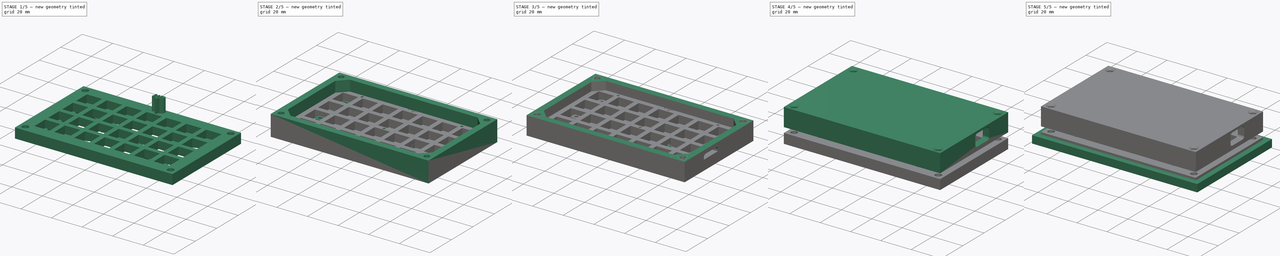
[diagram: build sequence overview — one tinted view per stage of 5, left to right]
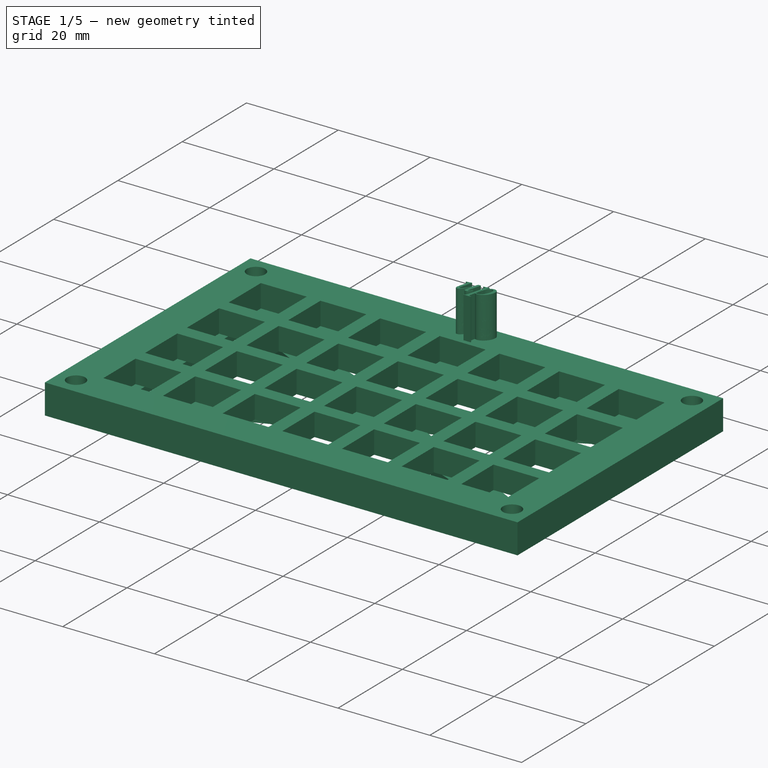
[diagram: stage 1 of 5 — iso view after this stage's code; geometry added in this stage tinted green]
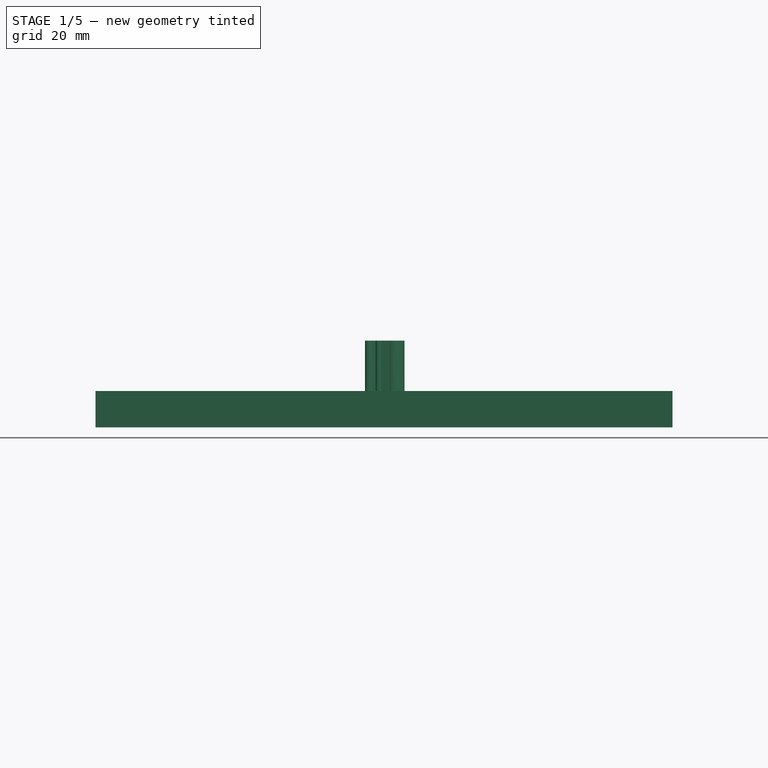
[diagram: stage 1 of 5 — front view after this stage's code; geometry added in this stage tinted green]
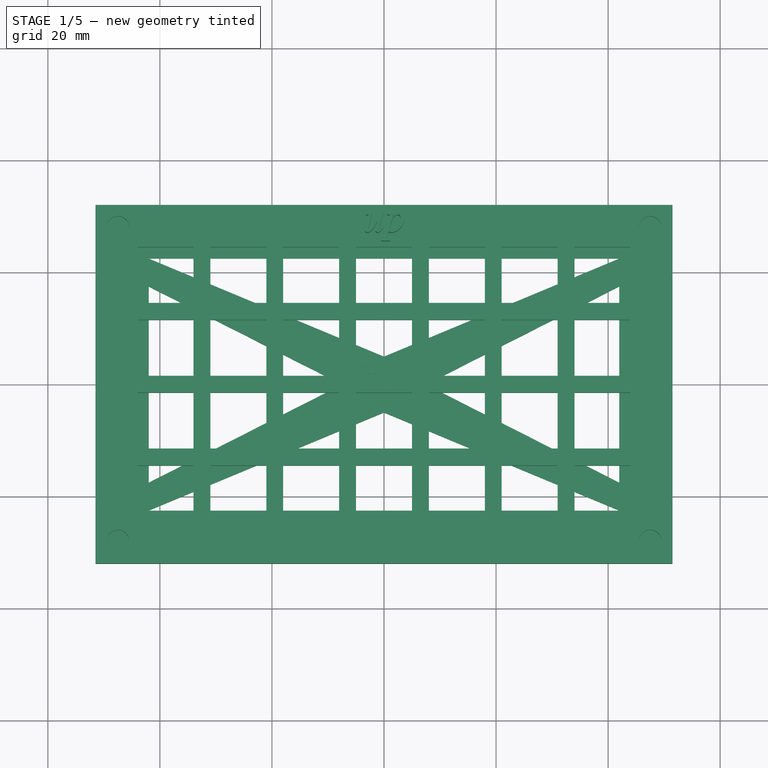
[diagram: stage 1 of 5 — top view after this stage's code; geometry added in this stage tinted green]
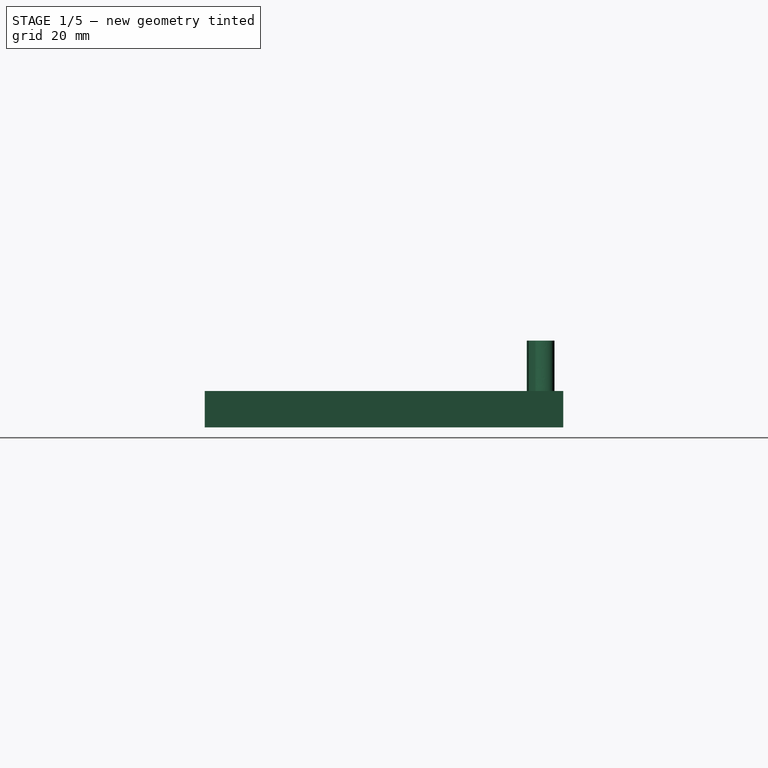
[diagram: stage 1 of 5 — right view after this stage's code; geometry added in this stage tinted green]
FCSTD DOCUMENT  (FreeCAD 1.0R39319 (Git))
Label: CCal v2
License: All rights reserved
LicenseURL: https://en.wikipedia.org/wiki/All_rights_reserved
objects: Sketcher::SketchObject×28, PartDesign::Pad×14, PartDesign::Pocket×12, PartDesign::Body×7, PartDesign::Fillet×5, Part::Part2DObjectPython×5, Part::Extrusion×5, Part::Cut×5, PartDesign::Hole×2
note: 177 computed .brp shape members not serialized (recipe doc carries the construction recipe); baked Part::Feature solids carry a one-line shape summary decoded from their .brp

FEATURE [Sketcher::SketchObject] Sketch
  ArcFitTolerance = 1e-06
  AttachmentSupport = -> [XY_Plane]
  FullyConstrained = true
  MakeInternals = false
  MapMode = 5
  sketch-geometry (5):
    g0: LineSegment StartX=51.5 StartY=-32 StartZ=0 EndX=51.5 EndY=32 EndZ=0
    g1: LineSegment StartX=51.5 StartY=32 StartZ=0 EndX=-51.5 EndY=32 EndZ=0
    g2: LineSegment StartX=-51.5 StartY=32 StartZ=0 EndX=-51.5 EndY=-32 EndZ=0
    g3: LineSegment StartX=-51.5 StartY=-32 StartZ=0 EndX=51.5 EndY=-32 EndZ=0
    g4: GeomPoint [constr] X=0 Y=0 Z=0
  constraints (12):
    c: Coincident(g0,g1)
    c: Coincident(g1,g2)
    c: Coincident(g2,g3)
    c: Coincident(g3,g0)
    c: Vertical(g0)
    c: Vertical(g2)
    c: Horizontal(g1)
    c: Horizontal(g3)
    c: Symmetric(g2,g0,g4)
    c: Coincident(g4,g-1)
    c: DistanceX(g3,g3) = 103
    c: DistanceY(g0,g0) = 64
FEATURE [PartDesign::Pad] Pad
  Direction = (0,0,1)
  Length = 6.5
  Length2 = 10
  Profile = -> Sketch
  ReferenceAxis = -> Sketch [N_Axis]
  Refine = true
  Suppressed = false
  Type = 0
FEATURE [Sketcher::SketchObject] Sketch001
  ArcFitTolerance = 1e-06
  AttachmentSupport = -> [Pad]
  FullyConstrained = true
  MakeInternals = false
  MapMode = 5
  Placement = pos=(0,0,6.5) rot=(0,0,1;0rad)
  sketch-geometry (112):
    g0: LineSegment StartX=5 StartY=-14.5 StartZ=0 EndX=-5 EndY=-14.5 EndZ=0
    g1: LineSegment StartX=-5 StartY=-14.5 StartZ=0 EndX=-5 EndY=-24.5 EndZ=0
    g2: LineSegment StartX=-5 StartY=-24.5 StartZ=0 EndX=5 EndY=-24.5 EndZ=0
    g3: LineSegment StartX=5 StartY=-24.5 StartZ=0 EndX=5 EndY=-14.5 EndZ=0
    g4: LineSegment StartX=-8 StartY=-14.5 StartZ=0 EndX=-18 EndY=-14.5 EndZ=0
    g5: LineSegment StartX=-18 StartY=-14.5 StartZ=0 EndX=-18 EndY=-24.5 EndZ=0
    g6: LineSegment StartX=-18 StartY=-24.5 StartZ=0 EndX=-8 EndY=-24.5 EndZ=0
    g7: LineSegment StartX=-8 StartY=-24.5 StartZ=0 EndX=-8 EndY=-14.5 EndZ=0
    g8: LineSegment StartX=-21 StartY=-14.5 StartZ=0 EndX=-31 EndY=-14.5 EndZ=0
    g9: LineSegment StartX=-31 StartY=-14.5 StartZ=0 EndX=-31 EndY=-24.5 EndZ=0
    g10: LineSegment StartX=-31 StartY=-24.5 StartZ=0 EndX=-21 EndY=-24.5 EndZ=0
    g11: LineSegment StartX=-21 StartY=-24.5 StartZ=0 EndX=-21 EndY=-14.5 EndZ=0
    g12: LineSegment StartX=8 StartY=-14.5 StartZ=0 EndX=8 EndY=-24.5 EndZ=0
    g13: LineSegment StartX=8 StartY=-24.5 StartZ=0 EndX=18 EndY=-24.5 EndZ=0
    g14: LineSegment StartX=18 StartY=-24.5 StartZ=0 EndX=18 EndY=-14.5 EndZ=0
    g15: LineSegment StartX=18 StartY=-14.5 StartZ=0 EndX=8 EndY=-14.5 EndZ=0
    g16: LineSegment StartX=21 StartY=-14.5 StartZ=0 EndX=21 EndY=-24.5 EndZ=0
    g17: LineSegment StartX=21 StartY=-24.5 StartZ=0 EndX=31 EndY=-24.5 EndZ=0
    g18: LineSegment StartX=31 StartY=-24.5 StartZ=0 EndX=31 EndY=-14.5 EndZ=0
    g19: LineSegment StartX=31 StartY=-14.5 StartZ=0 EndX=21 EndY=-14.5 EndZ=0
    g20: LineSegment StartX=34 StartY=-14.5 StartZ=0 EndX=34 EndY=-24.5 EndZ=0
    g21: LineSegment StartX=34 StartY=-24.5 StartZ=0 EndX=44 EndY=-24.5 EndZ=0
    g22: LineSegment StartX=44 StartY=-24.5 StartZ=0 EndX=44 EndY=-14.5 EndZ=0
    g23: LineSegment StartX=44 StartY=-14.5 StartZ=0 EndX=34 EndY=-14.5 EndZ=0
    g24: LineSegment StartX=-34 StartY=-14.5 StartZ=0 EndX=-44 EndY=-14.5 EndZ=0
    g25: LineSegment StartX=-44 StartY=-14.5 StartZ=0 EndX=-44 EndY=-24.5 EndZ=0
    g26: LineSegment StartX=-44 StartY=-24.5 StartZ=0 EndX=-34 EndY=-24.5 EndZ=0
    g27: LineSegment StartX=-34 StartY=-24.5 StartZ=0 EndX=-34 EndY=-14.5 EndZ=0
    g28: LineSegment StartX=5 StartY=24.5 StartZ=0 EndX=-5 EndY=24.5 EndZ=0
    g29: LineSegment StartX=-5 StartY=24.5 StartZ=0 EndX=-5 EndY=14.5 EndZ=0
    g30: LineSegment StartX=-5 StartY=14.5 StartZ=0 EndX=5 EndY=14.5 EndZ=0
    g31: LineSegment StartX=5 StartY=14.5 StartZ=0 EndX=5 EndY=24.5 EndZ=0
    g32: LineSegment StartX=-8 StartY=24.5 StartZ=0 EndX=-18 EndY=24.5 EndZ=0
    g33: LineSegment StartX=-18 StartY=24.5 StartZ=0 EndX=-18 EndY=14.5 EndZ=0
    g34: LineSegment StartX=-18 StartY=14.5 StartZ=0 EndX=-8 EndY=14.5 EndZ=0
    g35: LineSegment StartX=-8 StartY=14.5 StartZ=0 EndX=-8 EndY=24.5 EndZ=0
    g36: LineSegment StartX=-21 StartY=24.5 StartZ=0 EndX=-31 EndY=24.5 EndZ=0
    g37: LineSegment StartX=-31 StartY=24.5 StartZ=0 EndX=-31 EndY=14.5 EndZ=0
    g38: LineSegment StartX=-31 StartY=14.5 StartZ=0 EndX=-21 EndY=14.5 EndZ=0
    g39: LineSegment StartX=-21 StartY=14.5 StartZ=0 EndX=-21 EndY=24.5 EndZ=0
    g40: LineSegment StartX=8 StartY=24.5 StartZ=0 EndX=8 EndY=14.5 EndZ=0
    g41: LineSegment StartX=8 StartY=14.5 StartZ=0 EndX=18 EndY=14.5 EndZ=0
    g42: LineSegment StartX=18 StartY=14.5 StartZ=0 EndX=18 EndY=24.5 EndZ=0
    g43: LineSegment StartX=18 StartY=24.5 StartZ=0 EndX=8 EndY=24.5 EndZ=0
    g44: LineSegment StartX=21 StartY=24.5 StartZ=0 EndX=21 EndY=14.5 EndZ=0
    g45: LineSegment StartX=21 StartY=14.5 StartZ=0 EndX=31 EndY=14.5 EndZ=0
    g46: LineSegment StartX=31 StartY=14.5 StartZ=0 EndX=31 EndY=24.5 EndZ=0
    g47: LineSegment StartX=31 StartY=24.5 StartZ=0 EndX=21 EndY=24.5 EndZ=0
    g48: LineSegment StartX=34 StartY=24.5 StartZ=0 EndX=34 EndY=14.5 EndZ=0
    g49: LineSegment StartX=34 StartY=14.5 StartZ=0 EndX=44 EndY=14.5 EndZ=0
    g50: LineSegment StartX=44 StartY=14.5 StartZ=0 EndX=44 EndY=24.5 EndZ=0
    g51: LineSegment StartX=44 StartY=24.5 StartZ=0 EndX=34 EndY=24.5 EndZ=0
    g52: LineSegment StartX=-34 StartY=24.5 StartZ=0 EndX=-44 EndY=24.5 EndZ=0
    g53: LineSegment StartX=-44 StartY=24.5 StartZ=0 EndX=-44 EndY=14.5 EndZ=0
    g54: LineSegment StartX=-44 StartY=14.5 StartZ=0 EndX=-34 EndY=14.5 EndZ=0
    g55: LineSegment StartX=-34 StartY=14.5 StartZ=0 EndX=-34 EndY=24.5 EndZ=0
    g56: LineSegment StartX=5 StartY=11.5 StartZ=0 EndX=-5 EndY=11.5 EndZ=0
    g57: LineSegment StartX=-5 StartY=11.5 StartZ=0 EndX=-5 EndY=1.5 EndZ=0
    g58: LineSegment StartX=-5 StartY=1.5 StartZ=0 EndX=5 EndY=1.5 EndZ=0
    g59: LineSegment StartX=5 StartY=1.5 StartZ=0 EndX=5 EndY=11.5 EndZ=0
    g60: LineSegment StartX=-8 StartY=11.5 StartZ=0 EndX=-18 EndY=11.5 EndZ=0
    g61: LineSegment StartX=-18 StartY=11.5 StartZ=0 EndX=-18 EndY=1.5 EndZ=0
    g62: LineSegment StartX=-18 StartY=1.5 StartZ=0 EndX=-8 EndY=1.5 EndZ=0
    g63: LineSegment StartX=-8 StartY=1.5 StartZ=0 EndX=-8 EndY=11.5 EndZ=0
    g64: LineSegment StartX=-21 StartY=11.5 StartZ=0 EndX=-31 EndY=11.5 EndZ=0
    g65: LineSegment StartX=-31 StartY=11.5 StartZ=0 EndX=-31 EndY=1.5 EndZ=0
    g66: LineSegment StartX=-31 StartY=1.5 StartZ=0 EndX=-21 EndY=1.5 EndZ=0
    g67: LineSegment StartX=-21 StartY=1.5 StartZ=0 EndX=-21 EndY=11.5 EndZ=0
    g68: LineSegment StartX=8 StartY=11.5 StartZ=0 EndX=8 EndY=1.5 EndZ=0
    g69: LineSegment StartX=8 StartY=1.5 StartZ=0 EndX=18 EndY=1.5 EndZ=0
    g70: LineSegment StartX=18 StartY=1.5 StartZ=0 EndX=18 EndY=11.5 EndZ=0
    g71: LineSegment StartX=18 StartY=11.5 StartZ=0 EndX=8 EndY=11.5 EndZ=0
    g72: LineSegment StartX=21 StartY=11.5 StartZ=0 EndX=21 EndY=1.5 EndZ=0
    g73: LineSegment StartX=21 StartY=1.5 StartZ=0 EndX=31 EndY=1.5 EndZ=0
    g74: LineSegment StartX=31 StartY=1.5 StartZ=0 EndX=31 EndY=11.5 EndZ=0
    g75: LineSegment StartX=31 StartY=11.5 StartZ=0 EndX=21 EndY=11.5 EndZ=0
    g76: LineSegment StartX=34 StartY=11.5 StartZ=0 EndX=34 EndY=1.5 EndZ=0
    g77: LineSegment StartX=34 StartY=1.5 StartZ=0 EndX=44 EndY=1.5 EndZ=0
    g78: LineSegment StartX=44 StartY=1.5 StartZ=0 EndX=44 EndY=11.5 EndZ=0
    g79: LineSegment StartX=44 StartY=11.5 StartZ=0 EndX=34 EndY=11.5 EndZ=0
    g80: LineSegment StartX=-34 StartY=11.5 StartZ=0 EndX=-44 EndY=11.5 EndZ=0
    g81: LineSegment StartX=-44 StartY=11.5 StartZ=0 EndX=-44 EndY=1.5 EndZ=0
    g82: LineSegment StartX=-44 StartY=1.5 StartZ=0 EndX=-34 EndY=1.5 EndZ=0
    g83: LineSegment StartX=-34 StartY=1.5 StartZ=0 EndX=-34 EndY=11.5 EndZ=0
    g84: LineSegment StartX=5 StartY=-1.5 StartZ=0 EndX=-5 EndY=-1.5 EndZ=0
    g85: LineSegment StartX=-5 StartY=-1.5 StartZ=0 EndX=-5 EndY=-11.5 EndZ=0
    g86: LineSegment StartX=-5 StartY=-11.5 StartZ=0 EndX=5 EndY=-11.5 EndZ=0
    g87: LineSegment StartX=5 StartY=-11.5 StartZ=0 EndX=5 EndY=-1.5 EndZ=0
    g88: LineSegment StartX=-8 StartY=-1.5 StartZ=0 EndX=-18 EndY=-1.5 EndZ=0
    g89: LineSegment StartX=-18 StartY=-1.5 StartZ=0 EndX=-18 EndY=-11.5 EndZ=0
    g90: LineSegment StartX=-18 StartY=-11.5 StartZ=0 EndX=-8 EndY=-11.5 EndZ=0
    g91: LineSegment StartX=-8 StartY=-11.5 StartZ=0 EndX=-8 EndY=-1.5 EndZ=0
    g92: LineSegment StartX=-21 StartY=-1.5 StartZ=0 EndX=-31 EndY=-1.5 EndZ=0
    g93: LineSegment StartX=-31 StartY=-1.5 StartZ=0 EndX=-31 EndY=-11.5 EndZ=0
    g94: LineSegment StartX=-31 StartY=-11.5 StartZ=0 EndX=-21 EndY=-11.5 EndZ=0
    g95: LineSegment StartX=-21 StartY=-11.5 StartZ=0 EndX=-21 EndY=-1.5 EndZ=0
    g96: LineSegment StartX=8 StartY=-1.5 StartZ=0 EndX=8 EndY=-11.5 EndZ=0
    g97: LineSegment StartX=8 StartY=-11.5 StartZ=0 EndX=18 EndY=-11.5 EndZ=0
    g98: LineSegment StartX=18 StartY=-11.5 StartZ=0 EndX=18 EndY=-1.5 EndZ=0
    g99: LineSegment StartX=18 StartY=-1.5 StartZ=0 EndX=8 EndY=-1.5 EndZ=0
    g100: LineSegment StartX=21 StartY=-1.5 StartZ=0 EndX=21 EndY=-11.5 EndZ=0
    g101: LineSegment StartX=21 StartY=-11.5 StartZ=0 EndX=31 EndY=-11.5 EndZ=0
    g102: LineSegment StartX=31 StartY=-11.5 StartZ=0 EndX=31 EndY=-1.5 EndZ=0
    g103: LineSegment StartX=31 StartY=-1.5 StartZ=0 EndX=21 EndY=-1.5 EndZ=0
    g104: LineSegment StartX=34 StartY=-1.5 StartZ=0 EndX=34 EndY=-11.5 EndZ=0
    g105: LineSegment StartX=34 StartY=-11.5 StartZ=0 EndX=44 EndY=-11.5 EndZ=0
    g106: LineSegment StartX=44 StartY=-11.5 StartZ=0 EndX=44 EndY=-1.5 EndZ=0
    g107: LineSegment StartX=44 StartY=-1.5 StartZ=0 EndX=34 EndY=-1.5 EndZ=0
    g108: LineSegment StartX=-34 StartY=-1.5 StartZ=0 EndX=-44 EndY=-1.5 EndZ=0
    g109: LineSegment StartX=-44 StartY=-1.5 StartZ=0 EndX=-44 EndY=-11.5 EndZ=0
    g110: LineSegment StartX=-44 StartY=-11.5 StartZ=0 EndX=-34 EndY=-11.5 EndZ=0
    g111: LineSegment StartX=-34 StartY=-11.5 StartZ=0 EndX=-34 EndY=-1.5 EndZ=0
  constraints (336):
    c: Coincident(g0,g1)
    c: Coincident(g1,g2)
    c: Coincident(g2,g3)
    c: Coincident(g3,g0)
    c: Horizontal(g0)
    c: Horizontal(g2)
    c: Vertical(g1)
    c: Vertical(g3)
    c: Coincident(g4,g5)
    c: Coincident(g5,g6)
    c: Coincident(g6,g7)
    c: Coincident(g7,g4)
    c: Horizontal(g4)
    c: Horizontal(g6)
    c: Vertical(g5)
    c: Vertical(g7)
    c: Coincident(g8,g9)
    c: Coincident(g9,g10)
    c: Coincident(g10,g11)
    c: Coincident(g11,g8)
    c: Horizontal(g8)
    c: Horizontal(g10)
    c: Vertical(g9)
    c: Vertical(g11)
    c: Coincident(g12,g13)
    c: Coincident(g13,g14)
    c: Coincident(g14,g15)
    c: Coincident(g15,g12)
    c: Vertical(g12)
    c: Vertical(g14)
    c: Horizontal(g13)
    c: Horizontal(g15)
    c: Coincident(g16,g17)
    c: Coincident(g17,g18)
    c: Coincident(g18,g19)
    c: Coincident(g19,g16)
    c: Vertical(g16)
    c: Vertical(g18)
    c: Horizontal(g17)
    c: Horizontal(g19)
    c: Coincident(g20,g21)
    c: Coincident(g21,g22)
    c: Coincident(g22,g23)
    c: Coincident(g23,g20)
    c: Vertical(g20)
    c: Vertical(g22)
    c: Horizontal(g21)
    c: Horizontal(g23)
    c: Coincident(g24,g25)
    c: Coincident(g25,g26)
    c: Coincident(g26,g27)
    c: Coincident(g27,g24)
    c: Horizontal(g24)
    c: Horizontal(g26)
    c: Vertical(g25)
    c: Vertical(g27)
    c: Equal(g24,g8)
    c: Equal(g8,g4)
    c: Equal(g4,g0)
    c: Equal(g0,g15)
    c: Equal(g15,g19)
    c: Equal(g19,g23)
    c: Equal(g27,g9)
    c: Equal(g9,g5)
    c: Equal(g5,g1)
    c: Equal(g1,g12)
    c: Equal(g12,g16)
    c: Equal(g16,g20)
    c: DistanceX(g24,g8) = 3
    c: DistanceX(g8,g4) = 3
    c: DistanceX(g4,g0) = 3
    c: DistanceX(g0,g12) = 3
    c: DistanceX(g14,g16) = 3
    c: DistanceX(g18,g20) = 3
    c: Horizontal(g8,g24)
    c: Horizontal(g8,g4)
    c: Horizontal(g4,g0)
    c: Horizontal(g12,g0)
    c: Horizontal(g14,g16)
    c: Horizontal(g18,g20)
    c: DistanceX(g24,g24) = 10
    c: Equal(g24,g27)
    c: DistanceX(g0,g-1) = 5
    c: Coincident(g28,g29)
    c: Coincident(g29,g30)
    c: Coincident(g30,g31)
    c: Coincident(g31,g28)
    c: Horizontal(g28)
    c: Horizontal(g30)
    c: Vertical(g29)
    c: Vertical(g31)
    c: Coincident(g32,g33)
    c: Coincident(g33,g34)
    c: Coincident(g34,g35)
    c: Coincident(g35,g32)
    c: Horizontal(g32)
    c: Horizontal(g34)
    c: Vertical(g33)
    c: Vertical(g35)
    c: Coincident(g36,g37)
    c: Coincident(g37,g38)
    c: Coincident(g38,g39)
    c: Coincident(g39,g36)
    c: Horizontal(g36)
    c: Horizontal(g38)
    c: Vertical(g37)
    c: Vertical(g39)
    c: Coincident(g40,g41)
    c: Coincident(g41,g42)
    c: Coincident(g42,g43)
    c: Coincident(g43,g40)
    c: Vertical(g40)
    c: Vertical(g42)
    c: Horizontal(g41)
    c: Horizontal(g43)
    c: Coincident(g44,g45)
    c: Coincident(g45,g46)
    c: Coincident(g46,g47)
    c: Coincident(g47,g44)
    c: Vertical(g44)
    c: Vertical(g46)
    c: Horizontal(g45)
    c: Horizontal(g47)
    c: Coincident(g48,g49)
    c: Coincident(g49,g50)
    c: Coincident(g50,g51)
    c: Coincident(g51,g48)
    c: Vertical(g48)
    c: Vertical(g50)
    c: Horizontal(g49)
    c: Horizontal(g51)
    c: Coincident(g52,g53)
    c: Coincident(g53,g54)
    c: Coincident(g54,g55)
    c: Coincident(g55,g52)
    c: Horizontal(g52)
    c: Horizontal(g54)
    c: Vertical(g53)
    c: Vertical(g55)
    c: Equal(g52,g36)
    c: Equal(g36,g32)
    c: Equal(g32,g28)
    c: Equal(g28,g43)
    c: Equal(g43,g47)
    c: Equal(g47,g51)
    c: Equal(g55,g37)
    c: Equal(g37,g33)
    c: Equal(g33,g29)
    c: Equal(g29,g40)
    c: Equal(g40,g44)
    c: Equal(g44,g48)
    c: DistanceX(g52,g36) = 3
    c: DistanceX(g36,g32) = 3
    c: DistanceX(g32,g28) = 3
    c: DistanceX(g28,g40) = 3
    c: DistanceX(g42,g44) = 3
    c: DistanceX(g46,g48) = 3
    c: Horizontal(g36,g52)
    c: Horizontal(g36,g32)
    c: Horizontal(g32,g28)
    c: Horizontal(g40,g28)
    c: Horizontal(g42,g44)
    c: Horizontal(g46,g48)
    c: DistanceX(g52,g52) = 10
    c: Equal(g52,g55)
    c: DistanceX(g28,g-1) = 5
    c: Coincident(g56,g57)
    c: Coincident(g57,g58)
    c: Coincident(g58,g59)
    c: Coincident(g59,g56)
    c: Horizontal(g56)
    c: Horizontal(g58)
    c: Vertical(g57)
    c: Vertical(g59)
    c: Coincident(g60,g61)
    c: Coincident(g61,g62)
    c: Coincident(g62,g63)
    c: Coincident(g63,g60)
    c: Horizontal(g60)
    c: Horizontal(g62)
    c: Vertical(g61)
    c: Vertical(g63)
    c: Coincident(g64,g65)
    c: Coincident(g65,g66)
    c: Coincident(g66,g67)
    c: Coincident(g67,g64)
    c: Horizontal(g64)
    c: Horizontal(g66)
    c: Vertical(g65)
    c: Vertical(g67)
    c: Coincident(g68,g69)
    c: Coincident(g69,g70)
    c: Coincident(g70,g71)
    c: Coincident(g71,g68)
    c: Vertical(g68)
    c: Vertical(g70)
    c: Horizontal(g69)
    c: Horizontal(g71)
    c: Coincident(g72,g73)
    c: Coincident(g73,g74)
    c: Coincident(g74,g75)
    c: Coincident(g75,g72)
    c: Vertical(g72)
    c: Vertical(g74)
    c: Horizontal(g73)
    c: Horizontal(g75)
    c: Coincident(g76,g77)
    c: Coincident(g77,g78)
    c: Coincident(g78,g79)
    c: Coincident(g79,g76)
    c: Vertical(g76)
    c: Vertical(g78)
    c: Horizontal(g77)
    c: Horizontal(g79)
    c: Coincident(g80,g81)
    c: Coincident(g81,g82)
    c: Coincident(g82,g83)
    c: Coincident(g83,g80)
    c: Horizontal(g80)
    c: Horizontal(g82)
    c: Vertical(g81)
    c: Vertical(g83)
    c: Equal(g80,g64)
    c: Equal(g64,g60)
    c: Equal(g60,g56)
    c: Equal(g56,g71)
    c: Equal(g71,g75)
    c: Equal(g75,g79)
    c: Equal(g83,g65)
    c: Equal(g65,g61)
    c: Equal(g61,g57)
    c: Equal(g57,g68)
    c: Equal(g68,g72)
    c: Equal(g72,g76)
    c: DistanceX(g80,g64) = 3
    c: DistanceX(g64,g60) = 3
    c: DistanceX(g60,g56) = 3
    c: DistanceX(g56,g68) = 3
    c: DistanceX(g70,g72) = 3
    c: DistanceX(g74,g76) = 3
    c: Horizontal(g64,g80)
    c: Horizontal(g64,g60)
    c: Horizontal(g60,g56)
    c: Horizontal(g68,g56)
    c: Horizontal(g70,g72)
    c: Horizontal(g74,g76)
    c: DistanceX(g80,g80) = 10
    c: Equal(g80,g83)
    c: DistanceX(g56,g-1) = 5
    c: Coincident(g84,g85)
    c: Coincident(g85,g86)
    c: Coincident(g86,g87)
    c: Coincident(g87,g84)
    c: Horizontal(g84)
    c: Horizontal(g86)
    c: Vertical(g85)
    c: Vertical(g87)
    c: Coincident(g88,g89)
    c: Coincident(g89,g90)
    c: Coincident(g90,g91)
    c: Coincident(g91,g88)
    c: Horizontal(g88)
    c: Horizontal(g90)
    c: Vertical(g89)
    c: Vertical(g91)
    c: Coincident(g92,g93)
    c: Coincident(g93,g94)
    c: Coincident(g94,g95)
    c: Coincident(g95,g92)
    c: Horizontal(g92)
    c: Horizontal(g94)
    c: Vertical(g93)
    c: Vertical(g95)
    c: Coincident(g96,g97)
    c: Coincident(g97,g98)
    c: Coincident(g98,g99)
    c: Coincident(g99,g96)
    c: Vertical(g96)
    c: Vertical(g98)
    c: Horizontal(g97)
    c: Horizontal(g99)
    c: Coincident(g100,g101)
    c: Coincident(g101,g102)
    c: Coincident(g102,g103)
    c: Coincident(g103,g100)
    c: Vertical(g100)
    c: Vertical(g102)
    c: Horizontal(g101)
    c: Horizontal(g103)
    c: Coincident(g104,g105)
    c: Coincident(g105,g106)
    c: Coincident(g106,g107)
    c: Coincident(g107,g104)
    c: Vertical(g104)
    c: Vertical(g106)
    c: Horizontal(g105)
    c: Horizontal(g107)
    c: Coincident(g108,g109)
    c: Coincident(g109,g110)
    c: Coincident(g110,g111)
    c: Coincident(g111,g108)
    c: Horizontal(g108)
    c: Horizontal(g110)
    c: Vertical(g109)
    c: Vertical(g111)
    c: Equal(g108,g92)
    c: Equal(g92,g88)
    c: Equal(g88,g84)
    c: Equal(g84,g99)
    c: Equal(g99,g103)
    c: Equal(g103,g107)
    c: Equal(g111,g93)
    c: Equal(g93,g89)
    c: Equal(g89,g85)
    c: Equal(g85,g96)
    c: Equal(g96,g100)
    c: Equal(g100,g104)
    c: DistanceX(g108,g92) = 3
    c: DistanceX(g92,g88) = 3
    c: DistanceX(g88,g84) = 3
    c: DistanceX(g84,g96) = 3
    c: DistanceX(g98,g100) = 3
    c: DistanceX(g102,g104) = 3
    c: Horizontal(g92,g108)
    c: Horizontal(g92,g88)
    c: Horizontal(g88,g84)
    c: Horizontal(g96,g84)
    c: Horizontal(g98,g100)
    c: Horizontal(g102,g104)
    c: DistanceX(g108,g108) = 10
    c: Equal(g108,g111)
    c: DistanceX(g84,g-1) = 5
    c: DistanceY(g80,g53) = 3
    c: DistanceY(g108,g81) = 3
    c: DistanceY(g24,g109) = 3
    c: DistanceY(g-1,g57) = 1.5
FEATURE [PartDesign::Pocket] Pocket
  BaseFeature = -> Pad
  Direction = (0,0,-1)
  Length = 15
  Length2 = 5
  Profile = -> Sketch001
  ReferenceAxis = -> Sketch001 [N_Axis]
  Refine = true
  Suppressed = false
  Type = 0
FEATURE [PartDesign::Body] Body002  label="Cut Out Stencil"
  AllowCompound = false
  Group = -> [Sketch011,Pad003]
  Origin = -> Origin003
  Tip = -> Pad003
FEATURE [Sketcher::SketchObject] Sketch012
  ArcFitTolerance = 1e-06
  AttachmentSupport = -> [Pocket]
  FullyConstrained = true
  MakeInternals = false
  MapMode = 5
  Placement = pos=(0,0,0) rot=(1,0,0;3.14159rad)
  sketch-geometry (5):
    g0: LineSegment StartX=-47 StartY=27.5 StartZ=0 EndX=-47 EndY=-27.5 EndZ=0
    g1: LineSegment StartX=-47 StartY=-27.5 StartZ=0 EndX=47 EndY=-27.5 EndZ=0
    g2: LineSegment StartX=47 StartY=-27.5 StartZ=0 EndX=47 EndY=27.5 EndZ=0
    g3: LineSegment StartX=47 StartY=27.5 StartZ=0 EndX=-47 EndY=27.5 EndZ=0
    g4: GeomPoint [constr] X=0 Y=0 Z=0
  constraints (12):
    c: Coincident(g0,g1)
    c: Coincident(g1,g2)
    c: Coincident(g2,g3)
    c: Coincident(g3,g0)
    c: Vertical(g0)
    c: Vertical(g2)
    c: Horizontal(g1)
    c: Horizontal(g3)
    c: Symmetric(g2,g0,g4)
    c: Coincident(g4,g-1)
    c: DistanceX(g1,g1) = 94
    c: DistanceY(g2,g2) = 55
FEATURE [PartDesign::Pocket] Pocket006
  BaseFeature = -> Pocket
  Direction = (0,0,1)
  Length = 1.5
  Length2 = 5
  Profile = -> Sketch012
  ReferenceAxis = -> Sketch012 [N_Axis]
  Refine = true
  Suppressed = false
  Type = 0
FEATURE [Sketcher::SketchObject] Sketch013
  ArcFitTolerance = 1e-06
  AttachmentSupport = -> [Pocket006]
  ExternalGeometry = -> [Pocket006]
  FullyConstrained = true
  MakeInternals = false
  MapMode = 5
  Placement = pos=(0,0,6.5) rot=(0,0,1;0rad)
  sketch-geometry (4):
    g0: Circle CenterX=-47.5 CenterY=28 CenterZ=0 NormalX=0 NormalY=0 NormalZ=1 AngleXU=0 Radius=2
    g1: Circle CenterX=47.5 CenterY=28 CenterZ=0 NormalX=0 NormalY=0 NormalZ=1 AngleXU=0 Radius=2
    g2: Circle CenterX=47.5 CenterY=-28 CenterZ=0 NormalX=0 NormalY=0 NormalZ=1 AngleXU=0 Radius=2
    g3: Circle CenterX=-47.5 CenterY=-28 CenterZ=0 NormalX=0 NormalY=0 NormalZ=1 AngleXU=0 Radius=2
  constraints (12):
    c: Horizontal(g0,g1)
    c: Horizontal(g2,g3)
    c: Vertical(g0,g3)
    c: Vertical(g2,g1)
    c: DistanceX(g-4,g0) = 4
    c: DistanceX(g1,g-5) = 4
    c: DistanceY(g1,g-5) = 4
    c: DistanceY(g-6,g3) = 4
    c: Equal(g0,g1)
    c: Equal(g1,g2)
    c: Equal(g2,g3)
    c: Diameter(g0) = 4
FEATURE [PartDesign::Pocket] Pocket007
  BaseFeature = -> Pocket006
  Direction = (0,0,-1)
  Length = 4
  Length2 = 5
  Profile = -> Sketch013
  ReferenceAxis = -> Sketch013 [N_Axis]
  Refine = true
  Suppressed = false
  Type = 0
FEATURE [Part::Part2DObjectPython] ShapeString004  # Draft 2D object (typed FeaturePython)
  FontFile = <path>
  Fuse = false
  Justification = 6
  JustificationReference = 0
  KeepLeftMargin = false
  MakeFace = true
  ObliqueAngle = 0
  Placement = pos=(-3.39488,27.055,6.5) rot=(0,0,1;0rad)
  ScaleToSize = true
  Size = 5
  String = up
  Tracking = 0
FEATURE [Part::Extrusion] Extrude005
  Base = -> ShapeString004
  Dir = (0,0,1)
  DirMode = 2
  FaceMakerClass = Part::FaceMakerBullseye
  FaceMakerMode = 3
  LengthFwd = 10
  LengthRev = 0
  Placement = pos=(0,0,-1) rot=(0,0,1;0rad)
  Solid = false
  Symmetric = false
FEATURE [Sketcher::SketchObject] Sketch033
  ArcFitTolerance = 1e-06
  AttachmentSupport = -> [XY_Plane007]
  FullyConstrained = true
  MakeInternals = false
  MapMode = 5
  sketch-geometry (5):
    g0: LineSegment StartX=47 StartY=-27.5 StartZ=0 EndX=47 EndY=27.5 EndZ=0
    g1: LineSegment StartX=47 StartY=27.5 StartZ=0 EndX=-47 EndY=27.5 EndZ=0
    g2: LineSegment StartX=-47 StartY=27.5 StartZ=0 EndX=-47 EndY=-27.5 EndZ=0
    g3: LineSegment StartX=-47 StartY=-27.5 StartZ=0 EndX=47 EndY=-27.5 EndZ=0
    g4: GeomPoint [constr] X=0 Y=0 Z=0
  constraints (12):
    c: Coincident(g0,g1)
    c: Coincident(g1,g2)
    c: Coincident(g2,g3)
    c: Coincident(g3,g0)
    c: Vertical(g0)
    c: Vertical(g2)
    c: Horizontal(g1)
    c: Horizontal(g3)
    c: Symmetric(g2,g0,g4)
    c: Coincident(g4,g-1)
    c: DistanceX(g1,g1) = 94
    c: DistanceY(g0,g0) = 55
FEATURE [PartDesign::Pad] Pad013
  Direction = (0,0,1)
  Length = 1.5
  Length2 = 10
  Profile = -> Sketch033
  ReferenceAxis = -> Sketch033 [N_Axis]
  Refine = true
  Suppressed = false
  Type = 0
FEATURE [Sketcher::SketchObject] Sketch034
  ArcFitTolerance = 1e-06
  AttachmentSupport = -> [Pad013]
  ExternalGeometry = -> [Pad013]
  FullyConstrained = true
  MakeInternals = false
  MapMode = 5
  Placement = pos=(0,0,1.5) rot=(0,0,1;0rad)
  sketch-geometry (12):
    g0: LineSegment StartX=-42 StartY=17.5 StartZ=0 EndX=-42 EndY=-17.5 EndZ=0
    g1: LineSegment StartX=-42 StartY=-17.5 StartZ=0 EndX=-7.5 EndY=0 EndZ=0
    g2: LineSegment StartX=-7.5 StartY=0 StartZ=0 EndX=-42 EndY=17.5 EndZ=0
    g3: LineSegment StartX=-42 StartY=-22.5 StartZ=0 EndX=0 EndY=-5 EndZ=0
    g4: LineSegment StartX=0 StartY=-5 StartZ=0 EndX=42 EndY=-22.5 EndZ=0
    g5: LineSegment StartX=42 StartY=-22.5 StartZ=0 EndX=-42 EndY=-22.5 EndZ=0
    g6: LineSegment StartX=-42 StartY=22.5 StartZ=0 EndX=42 EndY=22.5 EndZ=0
    g7: LineSegment StartX=42 StartY=22.5 StartZ=0 EndX=0 EndY=5 EndZ=0
    g8: LineSegment StartX=0 StartY=5 StartZ=0 EndX=-42 EndY=22.5 EndZ=0
    g9: LineSegment StartX=42 StartY=17.5 StartZ=0 EndX=42 EndY=-17.5 EndZ=0
    g10: LineSegment StartX=42 StartY=-17.5 StartZ=0 EndX=7.5 EndY=0 EndZ=0
    g11: LineSegment StartX=7.5 StartY=0 StartZ=0 EndX=42 EndY=17.5 EndZ=0
  constraints (36):
    c: Vertical(g0)
    c: Coincident(g0,g1)
    c: Coincident(g1,g2)
    c: Coincident(g2,g0)
    c: Coincident(g3,g4)
    c: Coincident(g4,g5)
    c: Coincident(g5,g3)
    c: Horizontal(g5)
    c: Horizontal(g6)
    c: Coincident(g6,g7)
    c: PointOnObject(g7,g-2)
    c: Coincident(g7,g8)
    c: Coincident(g8,g6)
    c: Vertical(g9)
    c: Coincident(g9,g10)
    c: PointOnObject(g10,g-1)
    c: Coincident(g10,g11)
    c: Coincident(g11,g9)
    c: PointOnObject(g3,g-2)
    c: PointOnObject(g1,g-1)
    c: Equal(g9,g0)
    c: Equal(g2,g11)
    c: Equal(g1,g10)
    c: Equal(g2,g1)
    c: Equal(g8,g3)
    c: Equal(g7,g4)
    c: Equal(g8,g7)
    c: Equal(g5,g6)
    c: DistanceX(g1,g10) = 15
    c: DistanceY(g3,g7) = 10
    c: DistanceX(g1,g-1) = 7.5
    c: DistanceY(g3,g-1) = 5
    c: DistanceX(g-3,g0) = 5
    c: DistanceY(g6,g-3) = 5
    c: DistanceX(g0,g3) = 0
    c: DistanceY(g3,g0) = 5
FEATURE [PartDesign::Pocket] Pocket015
  BaseFeature = -> Pad013
  Direction = (0,0,-1)
  Length = 2
  Length2 = 5
  Profile = -> Sketch034
  ReferenceAxis = -> Sketch034 [N_Axis]
  Refine = true
  Suppressed = false
  Type = 0
FEATURE [PartDesign::Body] Body006  label="Cut out stencil v2"
  AllowCompound = false
  Group = -> [Sketch033,Pad013,Sketch034,Pocket015]
  Origin = -> Origin007
  Tip = -> Pocket015
FEATURE [Part::Part2DObjectPython] ShapeString005  # Draft 2D object (typed FeaturePython)
  FontFile = <path>
  Fuse = false
  Justification = 6
  JustificationReference = 0
  KeepLeftMargin = false
  MakeFace = true
  ObliqueAngle = 0
  Placement = pos=(-7.62291,2.00262,1.5) rot=(0,0,-1;0.471477rad)
  ScaleToSize = true
  Size = 4
  String = stencil
  Tracking = 0
FEATURE [Part::Extrusion] Extrude006
  Base = -> ShapeString005
  Dir = (0,0,1)
  DirMode = 2
  FaceMakerClass = Part::FaceMakerBullseye
  FaceMakerMode = 3
  LengthFwd = 10
  LengthRev = 0
  Placement = pos=(0,0,-0.5) rot=(0,0,1;0rad)
  Solid = false
  Symmetric = false
FEATURE [Part::Cut] Cut004  label="Cut Out Stencil v2"
  Base = -> Body006
  Refine = true
  Tool = -> Extrude006
note: 5 file-system paths scrubbed to <path> (originals preserved in the JSON sidecar)
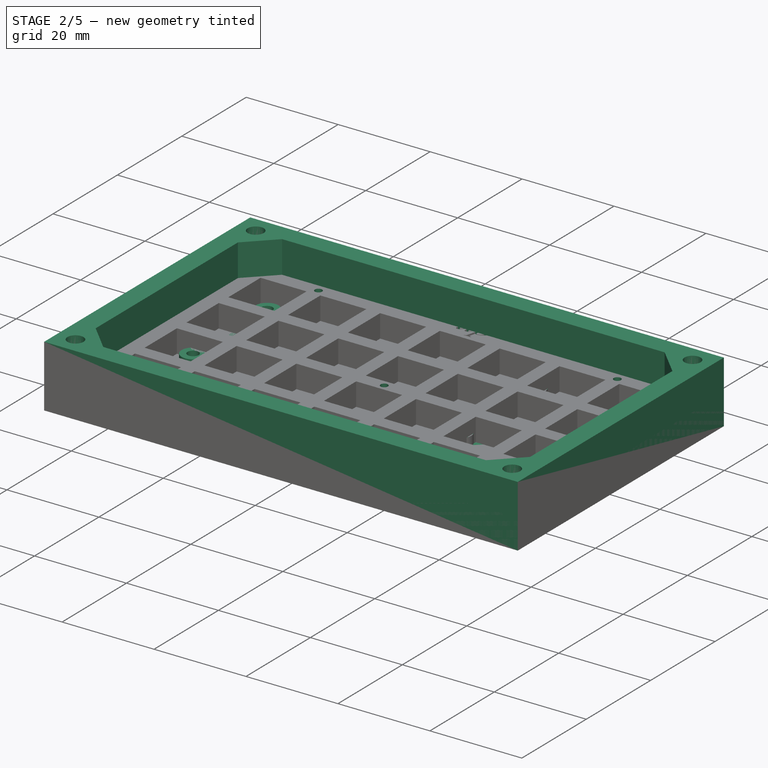
[diagram: stage 2 of 5 — iso view after this stage's code; geometry added in this stage tinted green]
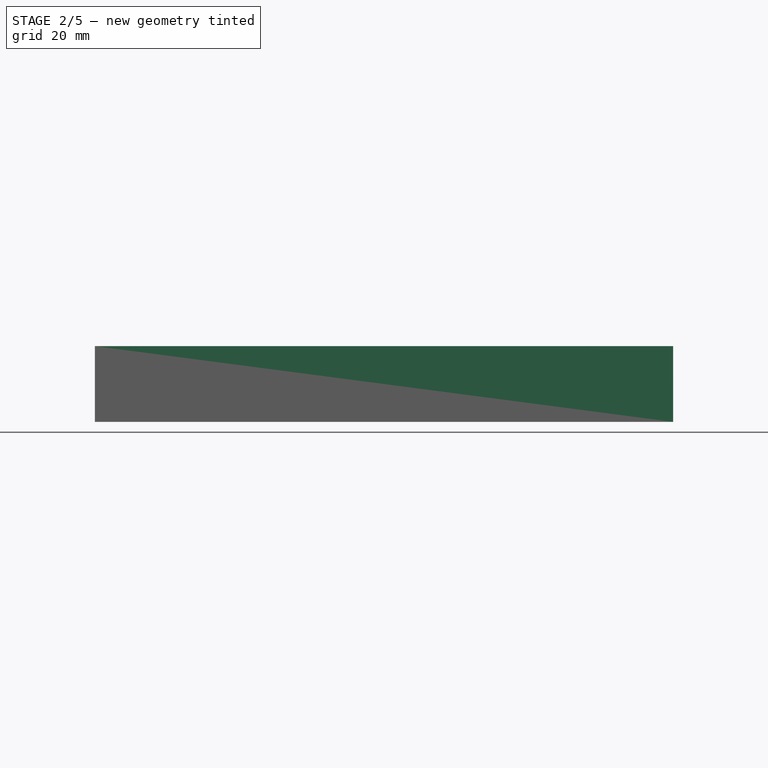
[diagram: stage 2 of 5 — front view after this stage's code; geometry added in this stage tinted green]
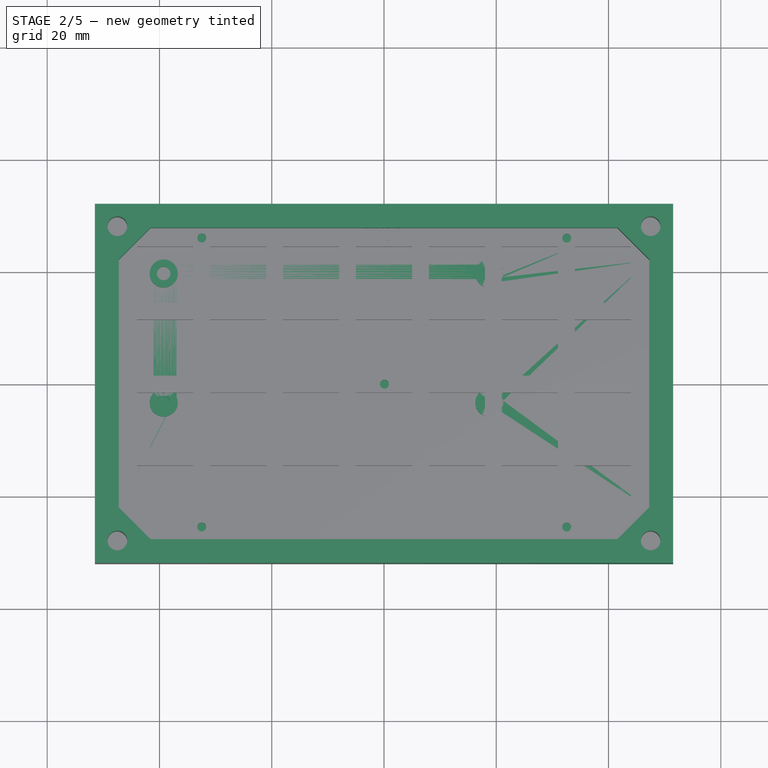
[diagram: stage 2 of 5 — top view after this stage's code; geometry added in this stage tinted green]
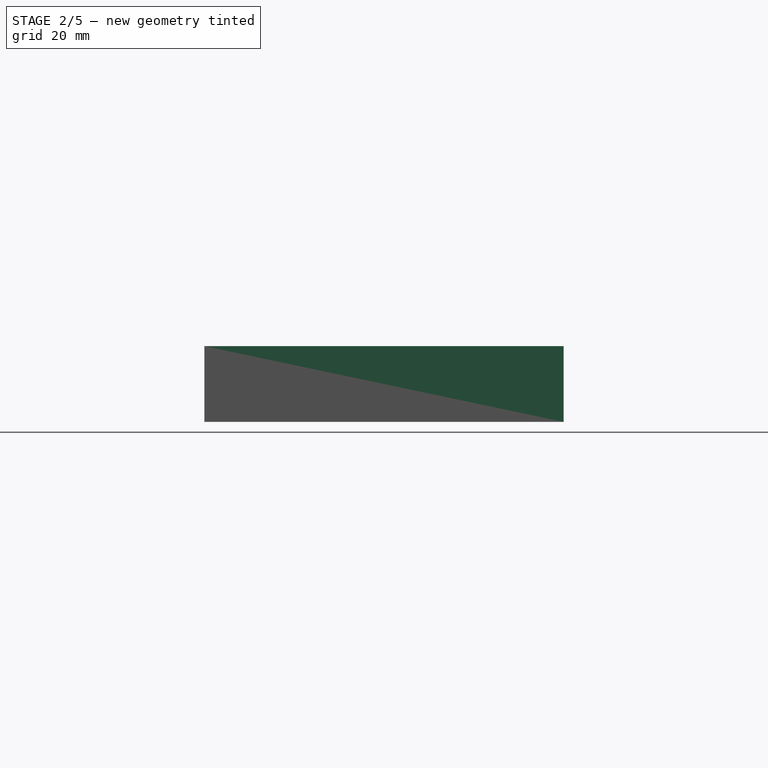
[diagram: stage 2 of 5 — right view after this stage's code; geometry added in this stage tinted green]
FEATURE [PartDesign::Fillet] Fillet
  Base = -> Pocket007 [Edge54,Edge132,Edge99,Edge17]
  BaseFeature = -> Pocket007
  Radius = 0.25
  Refine = true
  SupportTransform = false
  Suppressed = false
  UseAllEdges = false
FEATURE [Sketcher::SketchObject] Sketch015
  ArcFitTolerance = 1e-06
  AttachmentSupport = -> [XY_Plane004]
  FullyConstrained = true
  MakeInternals = false
  MapMode = 5
  sketch-geometry (5):
    g0: LineSegment StartX=-51.5 StartY=32 StartZ=0 EndX=-51.5 EndY=-32 EndZ=0
    g1: LineSegment StartX=-51.5 StartY=-32 StartZ=0 EndX=51.5 EndY=-32 EndZ=0
    g2: LineSegment StartX=51.5 StartY=-32 StartZ=0 EndX=51.5 EndY=32 EndZ=0
    g3: LineSegment StartX=51.5 StartY=32 StartZ=0 EndX=-51.5 EndY=32 EndZ=0
    g4: GeomPoint [constr] X=0 Y=0 Z=0
  constraints (12):
    c: Coincident(g0,g1)
    c: Coincident(g1,g2)
    c: Coincident(g2,g3)
    c: Coincident(g3,g0)
    c: Vertical(g0)
    c: Vertical(g2)
    c: Horizontal(g1)
    c: Horizontal(g3)
    c: Symmetric(g2,g0,g4)
    c: Coincident(g4,g-1)
    c: DistanceX(g1,g1) = 103
    c: DistanceY(g2,g2) = 64
FEATURE [PartDesign::Pad] Pad004
  Direction = (0,0,1)
  Length = 13.5
  Length2 = 10
  Profile = -> Sketch015
  ReferenceAxis = -> Sketch015 [N_Axis]
  Refine = true
  Suppressed = false
  Type = 0
FEATURE [Sketcher::SketchObject] Sketch017
  ArcFitTolerance = 1e-06
  AttachmentSupport = -> [Pad004]
  FullyConstrained = true
  MakeInternals = false
  MapMode = 5
  Placement = pos=(0,0,13.5) rot=(0,0,1;0rad)
  sketch-geometry (9):
    g0: LineSegment StartX=41.6 StartY=27.75 StartZ=0 EndX=-41.6 EndY=27.75 EndZ=0
    g1: LineSegment StartX=-41.625 StartY=-27.75 StartZ=0 EndX=41.6 EndY=-27.75 EndZ=0
    g2: GeomPoint [constr] X=0 Y=0 Z=0
    g3: LineSegment StartX=-47.25 StartY=-22.075 StartZ=0 EndX=-47.25 EndY=22.1 EndZ=0
    g4: LineSegment StartX=47.25 StartY=22.1 StartZ=0 EndX=47.25 EndY=-22.1 EndZ=0
    g5: LineSegment StartX=-47.25 StartY=22.1 StartZ=0 EndX=-41.6 EndY=27.75 EndZ=0
    g6: LineSegment StartX=41.6 StartY=27.75 StartZ=0 EndX=47.25 EndY=22.1 EndZ=0
    g7: LineSegment StartX=47.25 StartY=-22.1 StartZ=0 EndX=41.6 EndY=-27.75 EndZ=0
    g8: LineSegment StartX=-47.25 StartY=-22.075 StartZ=0 EndX=-41.625 EndY=-27.75 EndZ=0
  constraints (24):
    c: Horizontal(g0)
    c: Horizontal(g1)
    c: Symmetric(g0,g1,g2)
    c: Coincident(g2,g-1)
    c: DistanceX(g0,g0) = 83.2
    c: DistanceY(g1,g0) = 55.5
    c: Vertical(g3)
    c: DistanceY(g3,g3) = 44.175
    c: Vertical(g4)
    c: DistanceY(g4,g4) = 44.2
    c: DistanceY(g2,g4) = 22.1
    c: DistanceY(g2,g3) = 22.1
    c: DistanceX(g3,g2) = 47.25
    c: DistanceX(g2,g4) = 47.25
    c: DistanceX(g0,g2) = 41.6
    c: DistanceX(g1,g1) = 83.225
    c: Coincident(g3,g5)
    c: Coincident(g5,g0)
    c: Coincident(g0,g6)
    c: Coincident(g6,g4)
    c: Coincident(g4,g7)
    c: Coincident(g7,g1)
    c: Coincident(g3,g8)
    c: Coincident(g8,g1)
FEATURE [PartDesign::Pocket] Pocket008
  BaseFeature = -> Pad004
  Direction = (0,0,-1)
  Length = 12
  Length2 = 5
  Profile = -> Sketch017
  ReferenceAxis = -> Sketch017 [N_Axis]
  Refine = true
  Suppressed = false
  Type = 0
FEATURE [Sketcher::SketchObject] Sketch019
  ArcFitTolerance = 1e-06
  AttachmentSupport = -> [Pocket008]
  ExternalGeometry = -> [Pocket008]
  FullyConstrained = true
  MakeInternals = false
  MapMode = 5
  Placement = pos=(0,0,0) rot=(1,0,0;3.14159rad)
  sketch-geometry (4):
    g0: Circle CenterX=-47.5 CenterY=28 CenterZ=0 NormalX=0 NormalY=0 NormalZ=1 AngleXU=0 Radius=1.75
    g1: Circle CenterX=-47.5 CenterY=-28 CenterZ=0 NormalX=0 NormalY=0 NormalZ=1 AngleXU=0 Radius=1.75
    g2: Circle CenterX=47.5 CenterY=-28 CenterZ=0 NormalX=0 NormalY=0 NormalZ=1 AngleXU=0 Radius=1.75
    g3: Circle CenterX=47.5 CenterY=28 CenterZ=0 NormalX=0 NormalY=0 NormalZ=1 AngleXU=0 Radius=1.75
  constraints (12):
    c: Horizontal(g0,g3)
    c: Horizontal(g2,g1)
    c: Vertical(g0,g1)
    c: Vertical(g2,g3)
    c: Equal(g0,g3)
    c: Equal(g3,g2)
    c: Equal(g2,g1)
    c: DistanceX(g-4,g0) = 4
    c: DistanceX(g3,g-5) = 4
    c: DistanceY(g0,g-4) = 4
    c: DistanceY(g-6,g1) = 4
    c: Diameter(g0) = 3.5
FEATURE [PartDesign::Hole] Hole001
  BaseFeature = -> Pocket008
  CustomThreadClearance = 0
  Depth = 14
  DepthType = 0
  Diameter = 3.5
  DrillForDepth = false
  DrillPoint = 1
  DrillPointAngle = 118
  HoleCutCountersinkAngle = 90
  HoleCutCustomValues = false
  HoleCutDepth = 1.75
  HoleCutDiameter = 5.5
  HoleCutType = 2
  ModelThread = false
  Profile = -> Sketch019
  Refine = true
  Suppressed = false
  Tapered = false
  TaperedAngle = 90
  ThreadClass = 0
  ThreadDepth = 14
  ThreadDepthType = 0
  ThreadDirection = 0
  ThreadFit = 0
  ThreadSize = 0
  ThreadType = 0
  Threaded = false
  UseCustomThreadClearance = false
FEATURE [Sketcher::SketchObject] Sketch020
  ArcFitTolerance = 1e-06
  AttachmentSupport = -> [Hole001]
  ExternalGeometry = -> [Hole001]
  FullyConstrained = true
  MakeInternals = false
  MapMode = 5
  Placement = pos=(0,0,1.5) rot=(0,0,1;0rad)
  sketch-geometry (4):
    g0: Circle CenterX=-39.25 CenterY=19.75 CenterZ=0 NormalX=0 NormalY=0 NormalZ=1 AngleXU=0 Radius=2.5
    g1: Circle CenterX=18.75 CenterY=19.75 CenterZ=0 NormalX=0 NormalY=0 NormalZ=1 AngleXU=0 Radius=2.5
    g2: Circle CenterX=18.75 CenterY=-3.25 CenterZ=0 NormalX=0 NormalY=0 NormalZ=1 AngleXU=0 Radius=2.5
    g3: Circle CenterX=-39.25 CenterY=-3.25 CenterZ=0 NormalX=0 NormalY=0 NormalZ=1 AngleXU=0 Radius=2.5
  constraints (12):
    c: Horizontal(g0,g1)
    c: Vertical(g2,g1)
    c: Vertical(g0,g3)
    c: Horizontal(g3,g2)
    c: Equal(g0,g3)
    c: Equal(g3,g1)
    c: Equal(g1,g2)
    c: Diameter(g0) = 5
    c: DistanceY(g2,g1) = 23
    c: DistanceX(g0,g1) = 58
    c: DistanceY(g1,g-3) = 8
    c: DistanceX(g-5,g0) = 8
FEATURE [PartDesign::Pad] Pad005
  BaseFeature = -> Hole001
  Direction = (0,0,1)
  Length = 2
  Length2 = 10
  Profile = -> Sketch020
  ReferenceAxis = -> Sketch020 [N_Axis]
  Refine = true
  Suppressed = false
  Type = 0
FEATURE [Sketcher::SketchObject] Sketch021
  ArcFitTolerance = 1e-06
  AttachmentSupport = -> [Pad005]
  ExternalGeometry = -> [Pad005]
  FullyConstrained = true
  MakeInternals = false
  MapMode = 5
  Placement = pos=(0,0,3.5) rot=(0,0,1;0rad)
  sketch-geometry (4):
    g0: Circle CenterX=-39.25 CenterY=19.75 CenterZ=0 NormalX=0 NormalY=0 NormalZ=1 AngleXU=0 Radius=1.2
    g1: Circle CenterX=-39.25 CenterY=-3.25 CenterZ=0 NormalX=0 NormalY=0 NormalZ=1 AngleXU=0 Radius=1.2
    g2: Circle CenterX=18.75 CenterY=-3.25 CenterZ=0 NormalX=0 NormalY=0 NormalZ=1 AngleXU=0 Radius=1.2
    g3: Circle CenterX=18.75 CenterY=19.75 CenterZ=0 NormalX=0 NormalY=0 NormalZ=1 AngleXU=0 Radius=1.2
  constraints (8):
    c: Coincident(g0,g-3)
    c: Coincident(g1,g-4)
    c: Coincident(g2,g-5)
    c: Coincident(g3,g-6)
    c: Equal(g0,g1)
    c: Equal(g1,g2)
    c: Equal(g2,g3)
    c: Diameter(g0) = 2.4
FEATURE [PartDesign::Pocket] Pocket009
  BaseFeature = -> Pad005
  Direction = (0,0,-1)
  Length = 3
  Length2 = 5
  Profile = -> Sketch021
  ReferenceAxis = -> Sketch021 [N_Axis]
  Refine = true
  Suppressed = false
  Type = 0
FEATURE [Sketcher::SketchObject] Sketch027
  ArcFitTolerance = 1e-06
  AttachmentSupport = -> [Fillet]
  FullyConstrained = false
  MakeInternals = false
  MapMode = 5
  Placement = pos=(0,0,6.5) rot=(0,0,1;0rad)
  sketch-geometry (5):
    g0: Circle CenterX=-32.4602 CenterY=26.0106 CenterZ=0 NormalX=0 NormalY=0 NormalZ=1 AngleXU=0 Radius=0.787258
    g1: Circle CenterX=32.5533 CenterY=25.9837 CenterZ=0 NormalX=0 NormalY=0 NormalZ=1 AngleXU=0 Radius=0.787258
    g2: Circle CenterX=0.071176 CenterY=-0.025236 CenterZ=0 NormalX=0 NormalY=0 NormalZ=1 AngleXU=0 Radius=0.787258
    g3: Circle CenterX=-32.4769 CenterY=-25.4743 CenterZ=0 NormalX=0 NormalY=0 NormalZ=1 AngleXU=0 Radius=0.787258
    g4: Circle CenterX=32.5312 CenterY=-25.4938 CenterZ=0 NormalX=0 NormalY=0 NormalZ=1 AngleXU=0 Radius=0.787258
  constraints (4):
    c: Equal(g0,g3)
    c: Equal(g3,g2)
    c: Equal(g2,g1)
    c: Equal(g1,g4)
FEATURE [PartDesign::Pocket] Pocket012
  BaseFeature = -> Fillet
  Direction = (0,0,-1)
  Length = 3
  Length2 = 5
  Profile = -> Sketch027
  ReferenceAxis = -> Sketch027 [N_Axis]
  Refine = true
  Suppressed = false
  Type = 0
FEATURE [Part::Cut] Cut003  label="Face001"
  Base = -> Body
  Refine = true
  Tool = -> Extrude005
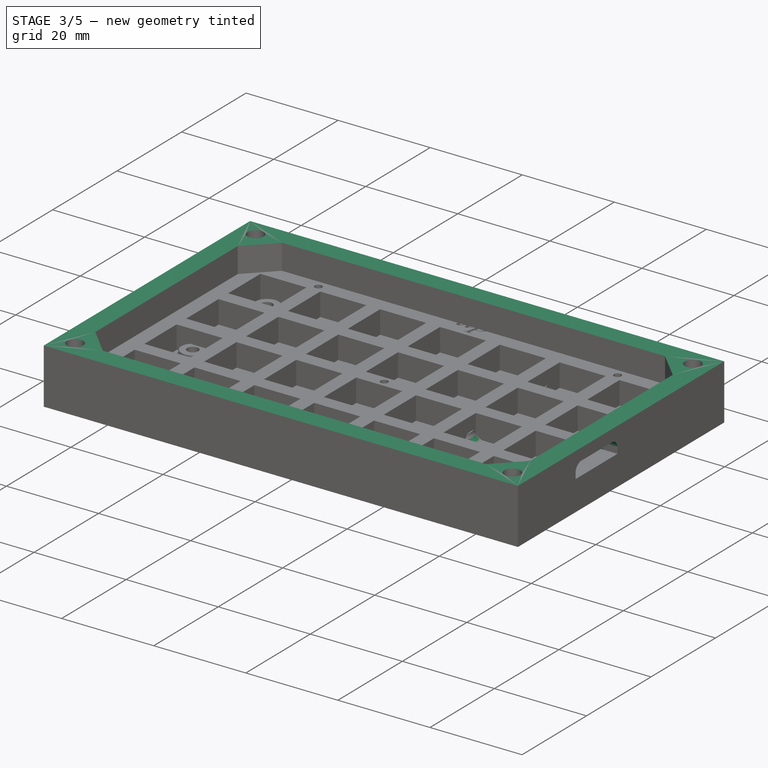
[diagram: stage 3 of 5 — iso view after this stage's code; geometry added in this stage tinted green]
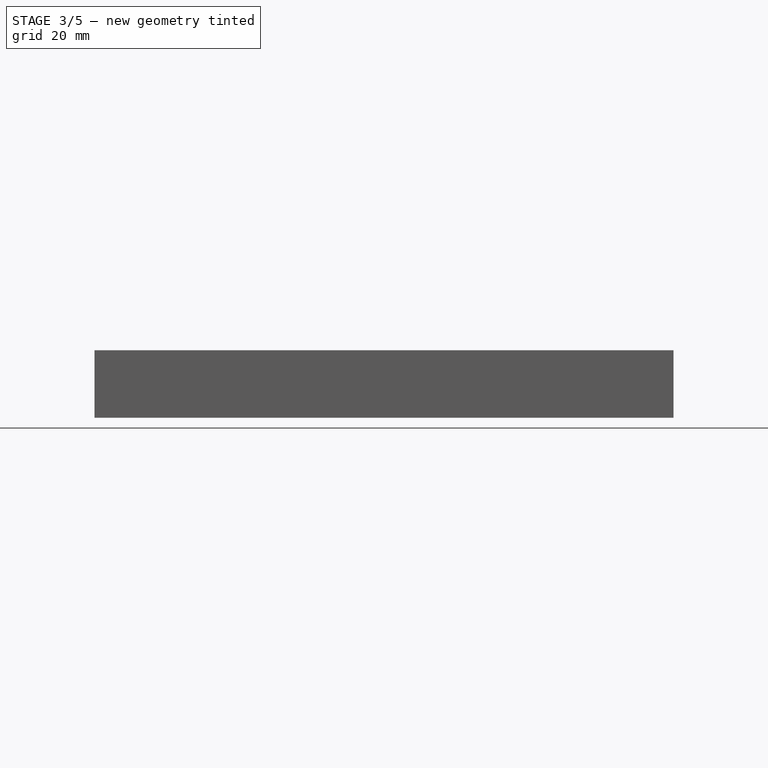
[diagram: stage 3 of 5 — front view after this stage's code; geometry added in this stage tinted green]
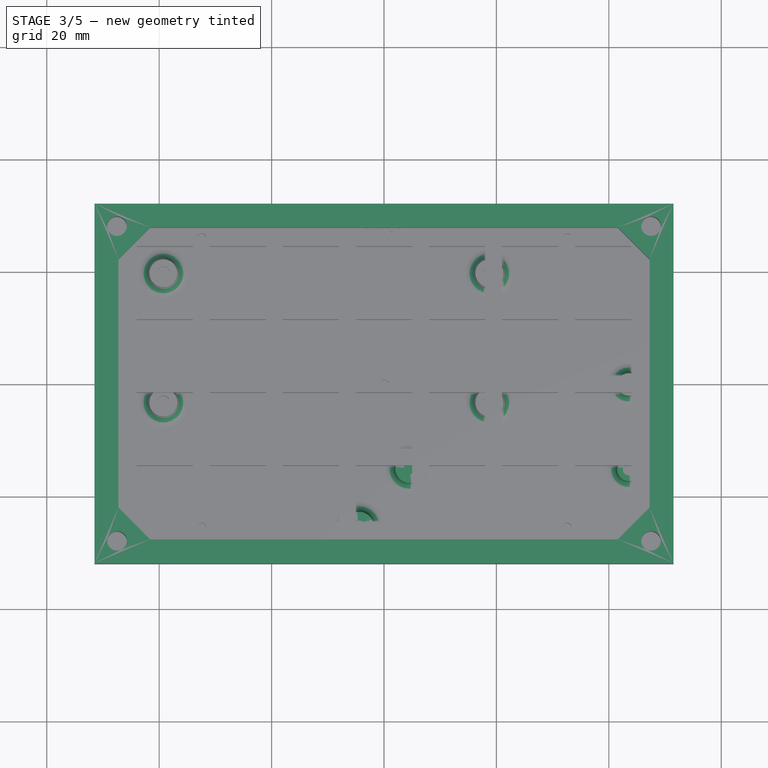
[diagram: stage 3 of 5 — top view after this stage's code; geometry added in this stage tinted green]
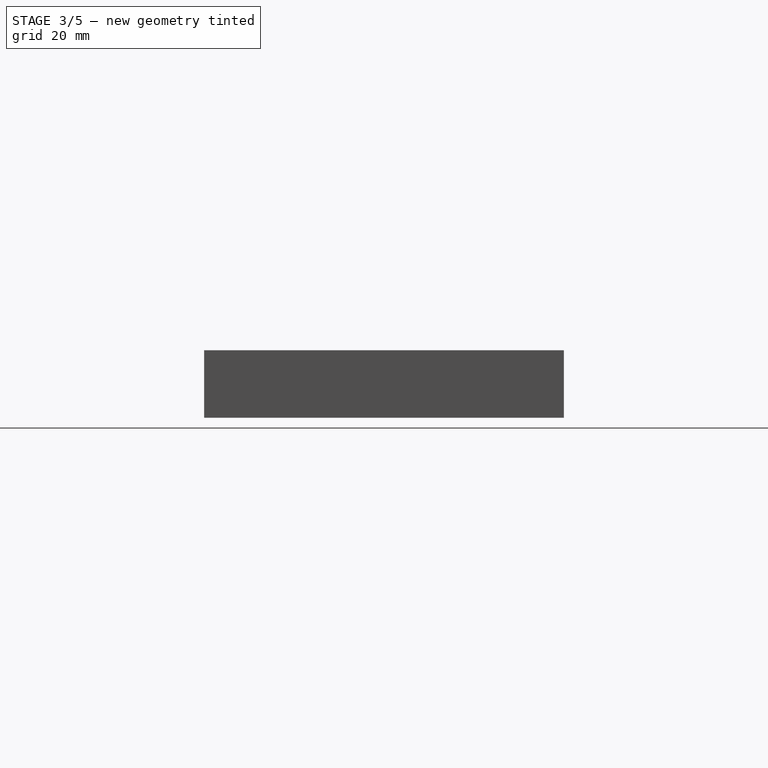
[diagram: stage 3 of 5 — right view after this stage's code; geometry added in this stage tinted green]
FEATURE [PartDesign::Fillet] Fillet003
  Base = -> Pocket009 [Edge57,Edge59,Edge60,Edge58]
  BaseFeature = -> Pocket009
  Radius = 1.99
  Refine = true
  SupportTransform = false
  Suppressed = false
  UseAllEdges = false
FEATURE [Sketcher::SketchObject] Sketch022
  ArcFitTolerance = 1e-06
  AttachmentSupport = -> [Fillet003]
  ExternalGeometry = -> [Fillet003]
  FullyConstrained = false
  MakeInternals = false
  MapMode = 5
  Placement = pos=(0,0,1.5) rot=(0,0,1;0rad)
  sketch-geometry (2):
    g0: Circle CenterX=43.5 CenterY=-0.0204445 CenterZ=0 NormalX=0 NormalY=0 NormalZ=1 AngleXU=0 Radius=2
    g1: Circle CenterX=43.5 CenterY=-15.2204 CenterZ=0 NormalX=0 NormalY=0 NormalZ=1 AngleXU=0 Radius=2
  constraints (6):
    c: Vertical(g0,g1)
    c: Equal(g0,g1)
    c: Diameter(g0) = 4
    c: DistanceY(g1,g0) = 15.2
    c: DistanceX(g1,g-3) = 8
    c: DistanceX(g-4,g-3) = 4.25
FEATURE [PartDesign::Pad] Pad006
  BaseFeature = -> Fillet003
  Direction = (0,0,1)
  Length = 2
  Length2 = 10
  Profile = -> Sketch022
  ReferenceAxis = -> Sketch022 [N_Axis]
  Refine = true
  Suppressed = false
  Type = 0
FEATURE [Sketcher::SketchObject] Sketch023
  ArcFitTolerance = 1e-06
  AttachmentSupport = -> [Pad006]
  ExternalGeometry = -> [Pad006]
  FullyConstrained = true
  MakeInternals = false
  MapMode = 5
  Placement = pos=(0,0,3.5) rot=(0,0,1;0rad)
  sketch-geometry (2):
    g0: Circle CenterX=43.5 CenterY=-0.0204445 CenterZ=0 NormalX=0 NormalY=0 NormalZ=1 AngleXU=0 Radius=1
    g1: Circle CenterX=43.5 CenterY=-15.2204 CenterZ=0 NormalX=0 NormalY=0 NormalZ=1 AngleXU=0 Radius=1
  constraints (4):
    c: Coincident(g0,g-3)
    c: Coincident(g1,g-4)
    c: Equal(g1,g0)
    c: Diameter(g0) = 2
FEATURE [PartDesign::Pocket] Pocket010
  BaseFeature = -> Pad006
  Direction = (0,0,-1)
  Length = 3
  Length2 = 5
  Profile = -> Sketch023
  ReferenceAxis = -> Sketch023 [N_Axis]
  Refine = true
  Suppressed = false
  Type = 0
FEATURE [PartDesign::Body] Body004  label="usbc breakout"
  AllowCompound = false
  Group = -> [Sketch024,Pad007,Sketch025,Pad008]
  Origin = -> Origin005
  Placement = pos=(39.64,-7.63,2.78) rot=(0,0,1;0rad)
  Tip = -> Pad008
FEATURE [PartDesign::Fillet] Fillet004
  Base = -> Pocket010 [Edge10,Edge12]
  BaseFeature = -> Pocket010
  Radius = 1.99
  Refine = true
  SupportTransform = false
  Suppressed = false
  UseAllEdges = false
FEATURE [Sketcher::SketchObject] Sketch026
  ArcFitTolerance = 1e-06
  AttachmentSupport = -> [Fillet004]
  ExternalGeometry = -> [Fillet004]
  FullyConstrained = true
  MakeInternals = false
  MapMode = 5
  Placement = pos=(51.5,0,0) rot=(0.57735,0.57735,0.57735;2.0944rad)
  sketch-geometry (8):
    g0: LineSegment StartX=-14.1204 StartY=7.93 StartZ=0 EndX=-14.1204 EndY=3 EndZ=0
    g1: LineSegment StartX=-1.12044 StartY=7.93 StartZ=0 EndX=-1.12044 EndY=3 EndZ=0
    g2: LineSegment StartX=-12.6204 StartY=1.5 StartZ=0 EndX=-2.62044 EndY=1.5 EndZ=0
    g3: ArcOfCircle CenterX=-12.2986 CenterY=3.3218 CenterZ=0 NormalX=0 NormalY=0 NormalZ=1 AngleXU=0 Radius=1.85 StartAngle=3.31643 EndAngle=4.53756
    g4: ArcOfCircle CenterX=-2.94224 CenterY=3.3218 CenterZ=0 NormalX=0 NormalY=0 NormalZ=1 AngleXU=0 Radius=1.85 StartAngle=4.88722 EndAngle=6.10835
    g5: LineSegment StartX=-12.6204 StartY=9.43 StartZ=0 EndX=-2.62044 EndY=9.43 EndZ=0
    g6: ArcOfCircle CenterX=-12.2986 CenterY=7.6082 CenterZ=0 NormalX=0 NormalY=0 NormalZ=1 AngleXU=0 Radius=1.85 StartAngle=1.74563 EndAngle=2.96676
    g7: ArcOfCircle CenterX=-2.94224 CenterY=7.6082 CenterZ=0 NormalX=0 NormalY=0 NormalZ=1 AngleXU=0 Radius=1.85 StartAngle=0.174834 EndAngle=1.39596
  constraints (28):
    c: Vertical(g0)
    c: Vertical(g1)
    c: Equal(g1,g0)
    c: Horizontal(g1,g0)
    c: Horizontal(g2)
    c: DistanceY(g-7,g2) = 0
    c: DistanceX(g0,g1) = 13
    c: DistanceX(g2,g2) = 10
    c: DistanceX(g2,g1) = 1.5
    c: Coincident(g3,g0)
    c: Coincident(g3,g2)
    c: Coincident(g4,g2)
    c: Coincident(g4,g1)
    c: Equal(g4,g3)
    c: Horizontal(g5)
    c: Vertical(g5,g2)
    c: Vertical(g2,g5)
    c: Coincident(g6,g5)
    c: Coincident(g6,g0)
    c: Coincident(g7,g5)
    c: Coincident(g7,g1)
    c: DistanceY(g0,g5) = 1.5
    c: Equal(g7,g6)
    c: Equal(g6,g3)
    c: DistanceY(g2,g5) = 7.93
    c: Diameter(g6) = 3.7
    c: DistanceX(g-4,g0) = 0.1
    c: DistanceY(g2,g0) = 1.5
FEATURE [PartDesign::Pocket] Pocket011
  BaseFeature = -> Fillet004
  Direction = (-1,0,0)
  Length = 5
  Length2 = 5
  Profile = -> Sketch026
  ReferenceAxis = -> Sketch026 [N_Axis]
  Refine = true
  Suppressed = false
  Type = 0
FEATURE [PartDesign::Body] Body  label="Face"
  AllowCompound = false
  Group = -> [Sketch,Pad,Sketch001,Pocket,Sketch012,Pocket006,Sketch013,Pocket007,Fillet,Sketch027,Pocket012]
  Origin = -> Origin
  Tip = -> Pocket012
FEATURE [Sketcher::SketchObject] Sketch028
  ArcFitTolerance = 1e-06
  AttachmentSupport = -> [Pocket011]
  ExternalGeometry = -> [Pocket011]
  FullyConstrained = true
  MakeInternals = false
  MapMode = 5
  Placement = pos=(0,0,13.5) rot=(0,0,1;0rad)
  sketch-geometry (5):
    g0: LineSegment StartX=-51.5 StartY=32 StartZ=0 EndX=-51.5 EndY=-32 EndZ=0
    g1: LineSegment StartX=-51.5 StartY=-32 StartZ=0 EndX=51.5 EndY=-32 EndZ=0
    g2: LineSegment StartX=51.5 StartY=-32 StartZ=0 EndX=51.5 EndY=32 EndZ=0
    g3: LineSegment StartX=51.5 StartY=32 StartZ=0 EndX=-51.5 EndY=32 EndZ=0
    g4: GeomPoint [constr] X=0 Y=0 Z=0
  constraints (11):
    c: Coincident(g0,g1)
    c: Coincident(g1,g2)
    c: Coincident(g2,g3)
    c: Coincident(g3,g0)
    c: Vertical(g0)
    c: Vertical(g2)
    c: Horizontal(g1)
    c: Horizontal(g3)
    c: Symmetric(g2,g0,g4)
    c: Coincident(g4,g-1)
    c: Coincident(g1,g-3)
FEATURE [PartDesign::Pocket] Pocket013
  BaseFeature = -> Pocket011
  Direction = (0,0,-1)
  Length = 1.5
  Length2 = 5
  Profile = -> Sketch028
  ReferenceAxis = -> Sketch028 [N_Axis]
  Refine = true
  Suppressed = false
  Type = 0
FEATURE [PartDesign::Body] Body005  label="Buck Converter"
  AllowCompound = false
  Group = -> [Sketch029,Pad009,Pad010,Sketch030,Pad011]
  Origin = -> Origin006
  Placement = pos=(-1e-16,20.16,20.45) rot=(0,-1,0;3.14159rad)
  Tip = -> Pad011
FEATURE [Sketcher::SketchObject] Sketch031
  ArcFitTolerance = 1e-06
  AttachmentSupport = -> [Pocket013]
  FullyConstrained = false
  MakeInternals = false
  MapMode = 5
  Placement = pos=(0,0,1.5) rot=(0,0,1;0rad)
  sketch-geometry (2):
    g0: Circle CenterX=-4.35596 CenterY=-25.2018 CenterZ=0 NormalX=0 NormalY=0 NormalZ=1 AngleXU=0 Radius=2.5
    g1: Circle CenterX=4.50559 CenterY=-15.0375 CenterZ=0 NormalX=0 NormalY=0 NormalZ=1 AngleXU=0 Radius=2.5
  constraints (2):
    c: Equal(g0,g1)
    c: Diameter(g0) = 5
FEATURE [PartDesign::Pad] Pad012
  BaseFeature = -> Pocket013
  Direction = (0,0,1)
  Length = 2
  Length2 = 10
  Profile = -> Sketch031
  ReferenceAxis = -> Sketch031 [N_Axis]
  Refine = true
  Suppressed = false
  Type = 0
FEATURE [Sketcher::SketchObject] Sketch032
  ArcFitTolerance = 1e-06
  AttachmentSupport = -> [Pad012]
  ExternalGeometry = -> [Pad012]
  FullyConstrained = true
  MakeInternals = false
  MapMode = 5
  Placement = pos=(0,0,3.5) rot=(0,0,1;0rad)
  sketch-geometry (2):
    g0: Circle CenterX=-4.35596 CenterY=-25.2018 CenterZ=0 NormalX=0 NormalY=0 NormalZ=1 AngleXU=0 Radius=1
    g1: Circle CenterX=4.50559 CenterY=-15.0375 CenterZ=0 NormalX=0 NormalY=0 NormalZ=1 AngleXU=0 Radius=1
  constraints (4):
    c: Coincident(g0,g-4)
    c: Coincident(g1,g-3)
    c: Equal(g0,g1)
    c: Diameter(g0) = 2
FEATURE [PartDesign::Fillet] Fillet005
  Base = -> Pad012 [Edge36,Edge37]
  BaseFeature = -> Pad012
  Radius = 1.99
  Refine = true
  SupportTransform = false
  Suppressed = false
  UseAllEdges = false
FEATURE [PartDesign::Pocket] Pocket014
  BaseFeature = -> Fillet005
  Direction = (0,0,-1)
  Length = 3
  Length2 = 5
  Profile = -> Sketch032 [Edge2,Edge1]
  ReferenceAxis = -> Sketch032 [N_Axis]
  Refine = true
  Suppressed = false
  Type = 0
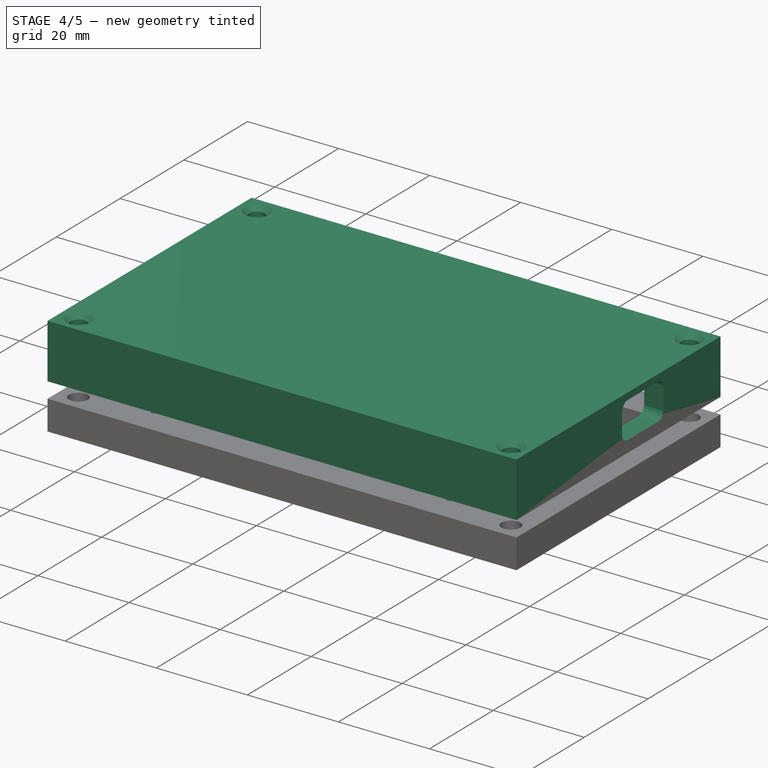
[diagram: stage 4 of 5 — iso view after this stage's code; geometry added in this stage tinted green]
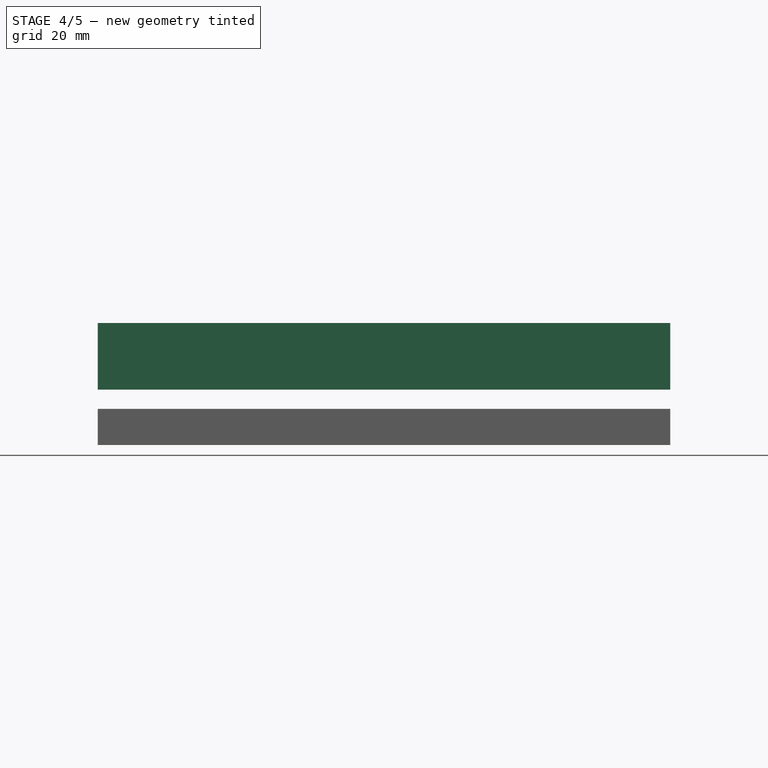
[diagram: stage 4 of 5 — front view after this stage's code; geometry added in this stage tinted green]
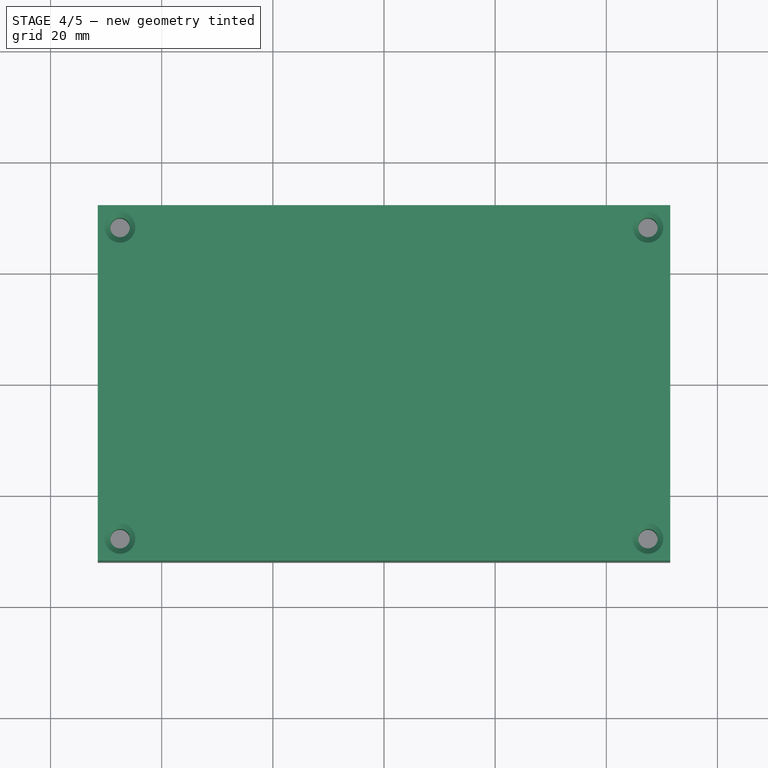
[diagram: stage 4 of 5 — top view after this stage's code; geometry added in this stage tinted green]
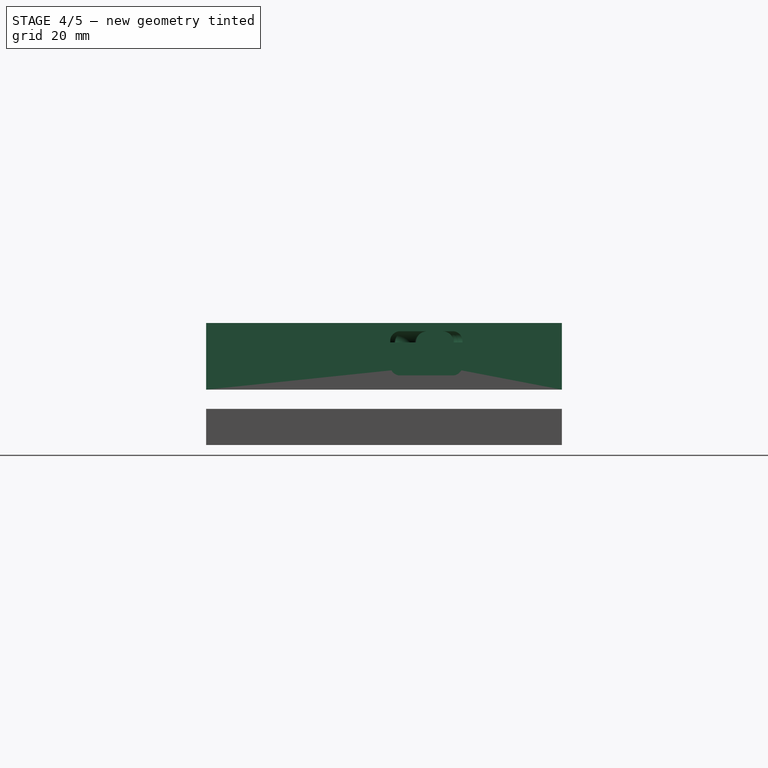
[diagram: stage 4 of 5 — right view after this stage's code; geometry added in this stage tinted green]
FEATURE [Sketcher::SketchObject] Sketch029
  ArcFitTolerance = 1e-06
  AttachmentSupport = -> [XY_Plane006]
  FullyConstrained = false
  MakeInternals = false
  MapMode = 5
  sketch-geometry (23):
    g0: LineSegment StartX=9.221 StartY=6.9785 StartZ=0 EndX=-9.221 EndY=6.9785 EndZ=0
    g1: LineSegment StartX=-9.221 StartY=-6.9785 StartZ=0 EndX=9.221 EndY=-6.9785 EndZ=0
    g2: GeomPoint [constr] X=0 Y=0 Z=0
    g3: Circle CenterX=-4.51697 CenterY=-5.1019 CenterZ=0 NormalX=0 NormalY=0 NormalZ=1 AngleXU=0 Radius=1.1
    g4: Circle CenterX=4.35372 CenterY=5.05215 CenterZ=0 NormalX=0 NormalY=0 NormalZ=1 AngleXU=0 Radius=1.1
    g5: LineSegment StartX=-9.221 StartY=5.97328 StartZ=0 EndX=-10.5986 EndY=5.97328 EndZ=0
    g6: LineSegment StartX=-10.5986 StartY=5.97328 StartZ=0 EndX=-10.5986 EndY=1.6228 EndZ=0
    g7: LineSegment StartX=-10.5986 StartY=1.6228 StartZ=0 EndX=-9.221 EndY=1.6228 EndZ=0
    g8: LineSegment StartX=-9.221 StartY=-1.65083 StartZ=0 EndX=-10.5986 EndY=-1.65083 EndZ=0
    g9: LineSegment StartX=-10.5986 StartY=-1.65083 StartZ=0 EndX=-10.5986 EndY=-6.03273 EndZ=0
    g10: LineSegment StartX=-10.5986 StartY=-6.03273 StartZ=0 EndX=-9.221 EndY=-6.03273 EndZ=0
    g11: LineSegment StartX=9.221 StartY=-1.65399 StartZ=0 EndX=10.5986 EndY=-1.65399 EndZ=0
    g12: LineSegment StartX=10.5986 StartY=-1.65399 StartZ=0 EndX=10.5986 EndY=-6.02876 EndZ=0
    g13: LineSegment StartX=10.5986 StartY=-6.02876 StartZ=0 EndX=9.221 EndY=-6.02876 EndZ=0
    g14: LineSegment StartX=9.221 StartY=5.98143 StartZ=0 EndX=10.5986 EndY=5.98143 EndZ=0
    g15: LineSegment StartX=10.5986 StartY=5.98143 StartZ=0 EndX=10.5986 EndY=1.59239 EndZ=0
    g16: LineSegment StartX=10.5986 StartY=1.59239 StartZ=0 EndX=9.221 EndY=1.59239 EndZ=0
    g17: LineSegment StartX=-9.221 StartY=5.97328 StartZ=0 EndX=-9.221 EndY=6.9785 EndZ=0
    g18: LineSegment StartX=-9.221 StartY=1.6228 StartZ=0 EndX=-9.221 EndY=-1.65083 EndZ=0
    g19: LineSegment StartX=-9.221 StartY=-6.03273 StartZ=0 EndX=-9.221 EndY=-6.9785 EndZ=0
    g20: LineSegment StartX=9.221 StartY=-6.02876 StartZ=0 EndX=9.221 EndY=-6.9785 EndZ=0
    g21: LineSegment StartX=9.221 StartY=-1.65399 StartZ=0 EndX=9.221 EndY=1.59239 EndZ=0
    g22: LineSegment StartX=9.221 StartY=5.98143 StartZ=0 EndX=9.221 EndY=6.9785 EndZ=0
  constraints (49):
    c: Horizontal(g0)
    c: Horizontal(g1)
    c: Symmetric(g0,g1,g2)
    c: Coincident(g2,g-1)
    c: DistanceX(g0,g0) = 18.442
    c: DistanceY(g1,g0) = 13.957
    c: Equal(g4,g3)
    c: Diameter(g3) = 2.2
    c: Horizontal(g5)
    c: Coincident(g5,g6)
    c: Vertical(g6)
    c: Coincident(g6,g7)
    c: Horizontal(g7)
    c: Horizontal(g8)
    c: Coincident(g8,g9)
    c: Vertical(g9)
    c: Coincident(g9,g10)
    c: Horizontal(g10)
    c: Horizontal(g11)
    c: Coincident(g11,g12)
    c: Vertical(g12)
    c: Coincident(g12,g13)
    c: Horizontal(g13)
    c: Horizontal(g14)
    c: Coincident(g14,g15)
    c: Vertical(g15)
    c: Coincident(g15,g16)
    c: Horizontal(g16)
    c: Equal(g5,g8)
    c: Equal(g8,g11)
    c: Equal(g11,g14)
    c: Coincident(g5,g17)
    c: Coincident(g17,g0)
    c: Vertical(g17)
    c: Coincident(g7,g18)
    c: Coincident(g18,g8)
    c: Vertical(g18)
    c: Coincident(g10,g19)
    c: Coincident(g19,g1)
    c: Vertical(g19)
    c: Coincident(g13,g20)
    c: Coincident(g20,g1)
    c: Vertical(g20)
    c: Coincident(g11,g21)
    c: Coincident(g21,g16)
    c: Vertical(g21)
    c: Coincident(g14,g22)
    c: Coincident(g22,g0)
    c: Vertical(g22)
FEATURE [PartDesign::Pad] Pad009
  Direction = (0,0,1)
  Length = 1.5
  Length2 = 10
  Profile = -> Sketch029
  ReferenceAxis = -> Sketch029 [N_Axis]
  Refine = true
  Suppressed = false
  Type = 0
FEATURE [PartDesign::Pad] Pad010
  BaseFeature = -> Pad009
  Direction = (0,0,1)
  Length = 1.5
  Length2 = 10
  Profile = -> Sketch029
  ReferenceAxis = -> Sketch029 [N_Axis]
  Refine = true
  Suppressed = false
  Type = 0
FEATURE [Part::Part2DObjectPython] ShapeString  # Draft 2D object (typed FeaturePython)
  FontFile = <path>
  Fuse = false
  Justification = 6
  JustificationReference = 0
  KeepLeftMargin = false
  MakeFace = true
  ObliqueAngle = 0
  Placement = pos=(-18.22,-3.71,20.47) rot=(1,0,0;3.14159rad)
  ScaleToSize = true
  Size = 10
  String = pi
  Tracking = 0
FEATURE [Part::Extrusion] Extrude
  Base = -> ShapeString
  Dir = (0,0,-1)
  DirMode = 2
  FaceMakerClass = Part::FaceMakerBullseye
  FaceMakerMode = 3
  LengthFwd = 10
  LengthRev = 0
  Placement = pos=(0.77,-2.12,1) rot=(0,0,1;0rad)
  Solid = false
  Symmetric = false
FEATURE [PartDesign::Body] Body003  label="Back Case"
  AllowCompound = false
  Group = -> [Sketch015,Pad004,Sketch017,Pocket008,Sketch019,Hole001,Sketch020,Pad005,Sketch021,Pocket009,Fillet003,Sketch022,Pad006,Sketch023,Pocket010,Fillet004,Sketch026,Pocket011,Sketch028,Pocket013,Sketch031,Pad012,Sketch032,Fillet005,Pocket014]
  Origin = -> Origin004
  Placement = pos=(0,-3.2e-15,21.97) rot=(1,0,0;3.14159rad)
  Tip = -> Pocket014
FEATURE [Part::Part2DObjectPython] ShapeString001  # Draft 2D object (typed FeaturePython)
  FontFile = <path>
  Fuse = false
  Justification = 6
  JustificationReference = 0
  KeepLeftMargin = false
  MakeFace = true
  ObliqueAngle = 0
  Placement = pos=(-20.23,19.59,20.47) rot=(1,0,0;3.14159rad)
  ScaleToSize = true
  Size = 10
  String = bc
  Tracking = 0
FEATURE [Part::Extrusion] Extrude003
  Base = -> ShapeString001
  Dir = (0,0,-1)
  DirMode = 2
  FaceMakerClass = Part::FaceMakerBullseye
  FaceMakerMode = 3
  LengthFwd = 10
  LengthRev = 0
  Placement = pos=(2.32,-1.06,1) rot=(0,0,1;0rad)
  Solid = false
  Symmetric = false
FEATURE [Part::Part2DObjectPython] ShapeString003  # Draft 2D object (typed FeaturePython)
  FontFile = <path>
  Fuse = false
  Justification = 6
  JustificationReference = 0
  KeepLeftMargin = false
  MakeFace = true
  ObliqueAngle = 0
  Placement = pos=(35.89,7.66,20.47) rot=(1,0,0;3.14159rad)
  ScaleToSize = true
  Size = 10
  String = usb c
  Tracking = 0
FEATURE [Part::Extrusion] Extrude004
  Base = -> ShapeString003
  Dir = (0,0,-1)
  DirMode = 2
  FaceMakerClass = Part::FaceMakerBullseye
  FaceMakerMode = 3
  LengthFwd = 10
  LengthRev = 0
  Placement = pos=(30.32,58.54,1) rot=(0,0,1;4.71239rad)
  Solid = false
  Symmetric = false
FEATURE [Part::Cut] Cut
  Base = -> Body003
  Refine = true
  Tool = -> Extrude
FEATURE [Part::Cut] Cut001
  Base = -> Cut
  Refine = true
  Tool = -> Extrude003
FEATURE [Part::Cut] Cut002  label="Back Case001"
  Base = -> Cut001
  Refine = true
  Tool = -> Extrude004
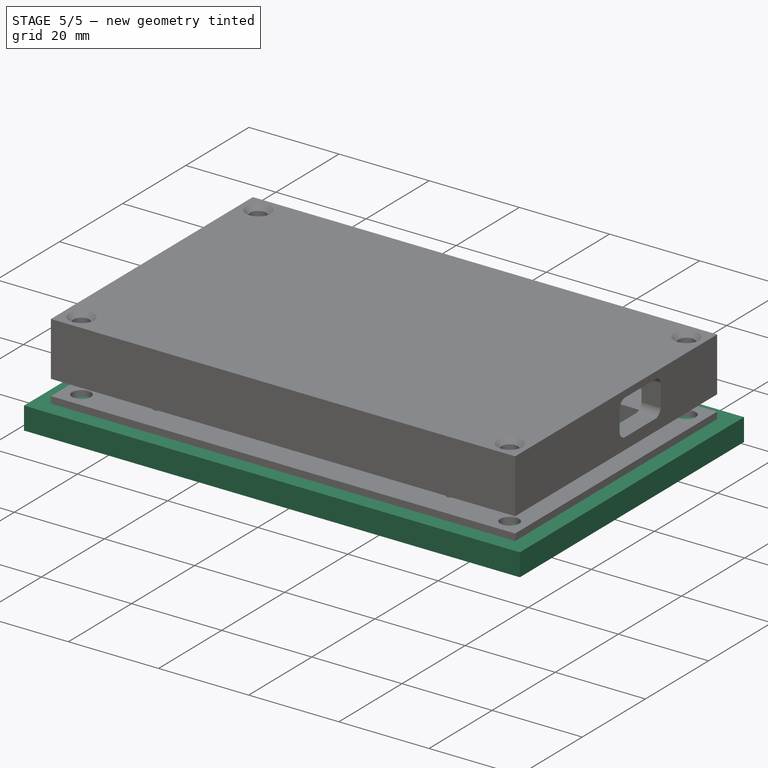
[diagram: stage 5 of 5 — iso view after this stage's code; geometry added in this stage tinted green]
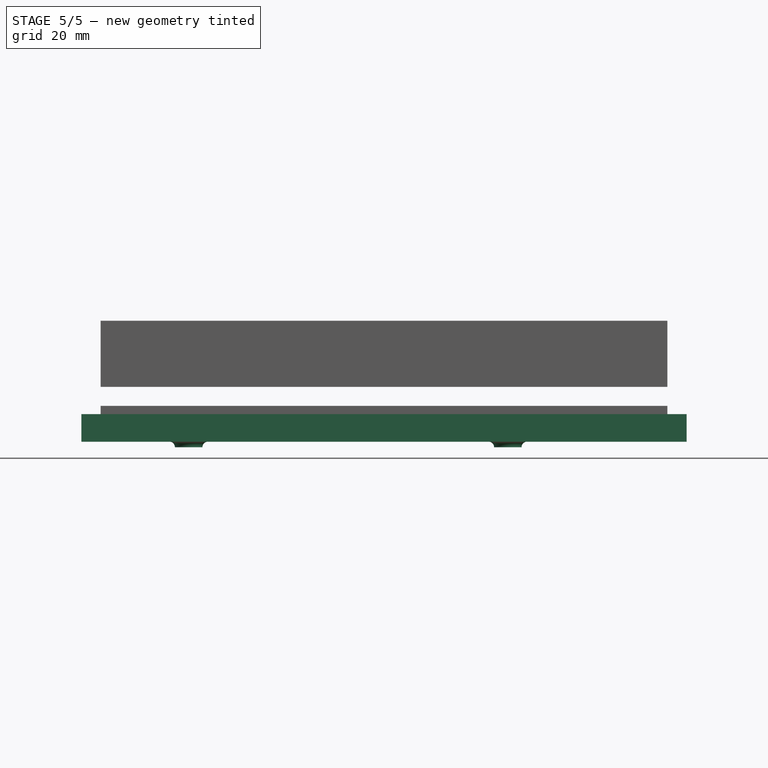
[diagram: stage 5 of 5 — front view after this stage's code; geometry added in this stage tinted green]
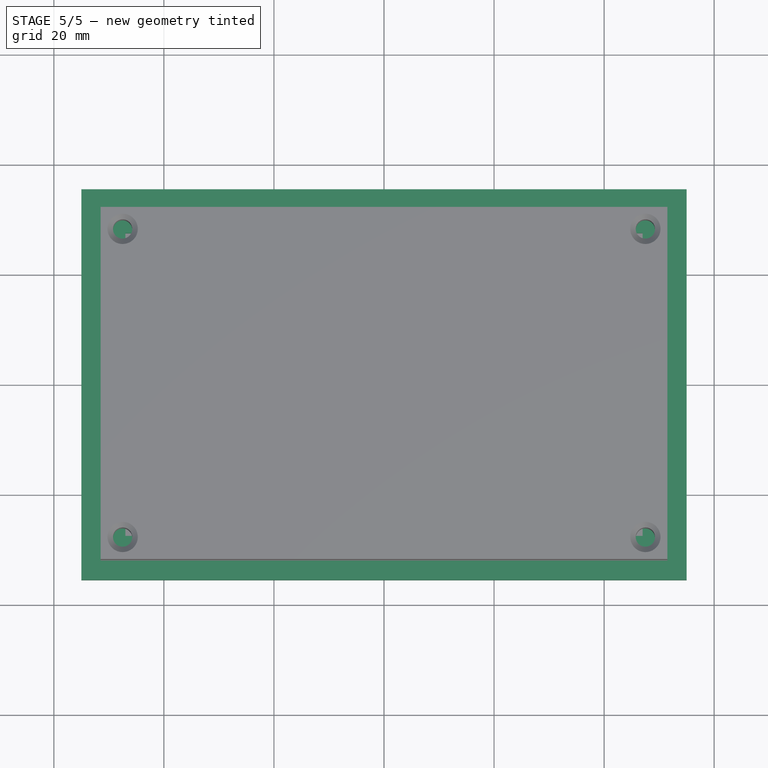
[diagram: stage 5 of 5 — top view after this stage's code; geometry added in this stage tinted green]
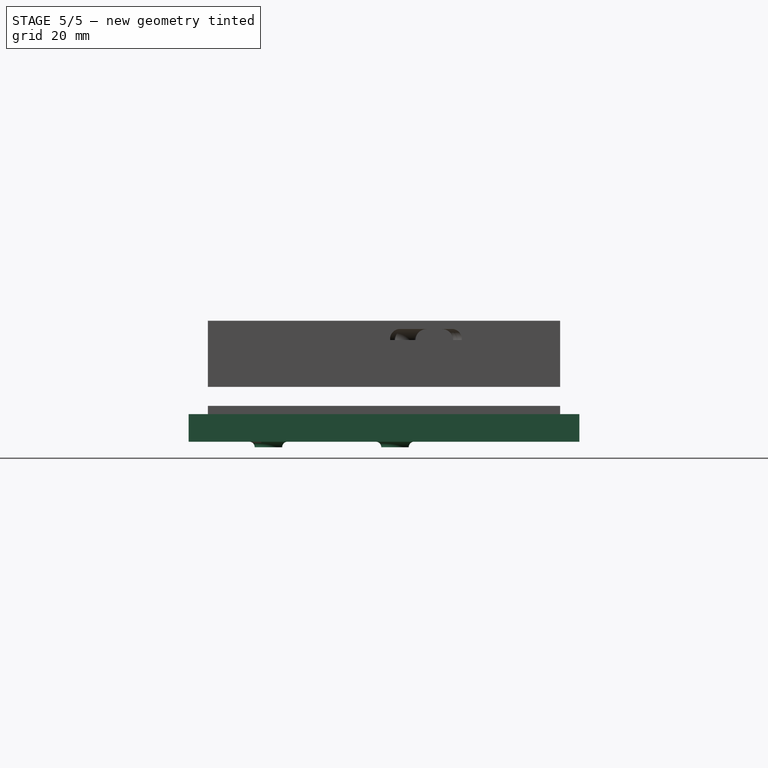
[diagram: stage 5 of 5 — right view after this stage's code; geometry added in this stage tinted green]
FEATURE [Sketcher::SketchObject] Sketch006
  ArcFitTolerance = 1e-06
  AttachmentSupport = -> [XY_Plane001]
  FullyConstrained = true
  MakeInternals = false
  MapMode = 5
  sketch-geometry (5):
    g0: LineSegment StartX=-51.5 StartY=32 StartZ=0 EndX=-51.5 EndY=-32 EndZ=0
    g1: LineSegment StartX=-51.5 StartY=-32 StartZ=0 EndX=51.5 EndY=-32 EndZ=0
    g2: LineSegment StartX=51.5 StartY=-32 StartZ=0 EndX=51.5 EndY=32 EndZ=0
    g3: LineSegment StartX=51.5 StartY=32 StartZ=0 EndX=-51.5 EndY=32 EndZ=0
    g4: GeomPoint [constr] X=0 Y=0 Z=0
  constraints (12):
    c: Coincident(g0,g1)
    c: Coincident(g1,g2)
    c: Coincident(g2,g3)
    c: Coincident(g3,g0)
    c: Vertical(g0)
    c: Vertical(g2)
    c: Horizontal(g1)
    c: Horizontal(g3)
    c: Symmetric(g2,g0,g4)
    c: Coincident(g4,g-1)
    c: DistanceX(g1,g1) = 103
    c: DistanceY(g2,g2) = 64
FEATURE [PartDesign::Pad] Pad001
  Direction = (0,0,1)
  Length = 3
  Length2 = 10
  Profile = -> Sketch006
  ReferenceAxis = -> Sketch006 [N_Axis]
  Refine = true
  Suppressed = false
  Type = 0
FEATURE [Sketcher::SketchObject] Sketch007
  ArcFitTolerance = 1e-06
  AttachmentSupport = -> [Pad001]
  ExternalGeometry = -> [Pad001]
  FullyConstrained = true
  MakeInternals = false
  MapMode = 5
  Placement = pos=(0,0,3) rot=(0,0,1;0rad)
  sketch-geometry (4):
    g0: Circle CenterX=-47.5 CenterY=28 CenterZ=0 NormalX=0 NormalY=0 NormalZ=1 AngleXU=0 Radius=2.1
    g1: Circle CenterX=47.5 CenterY=28 CenterZ=0 NormalX=0 NormalY=0 NormalZ=1 AngleXU=0 Radius=2.1
    g2: Circle CenterX=47.5 CenterY=-28 CenterZ=0 NormalX=0 NormalY=0 NormalZ=1 AngleXU=0 Radius=2.1
    g3: Circle CenterX=-47.5 CenterY=-28 CenterZ=0 NormalX=0 NormalY=0 NormalZ=1 AngleXU=0 Radius=2.1
  constraints (12):
    c: Equal(g3,g0)
    c: Equal(g0,g1)
    c: Equal(g1,g2)
    c: Diameter(g0) = 4.2
    c: DistanceX(g-4,g0) = 4
    c: DistanceX(g-5,g3) = 4
    c: DistanceX(g2,g-6) = 4
    c: DistanceX(g1,g-6) = 4
    c: DistanceY(g0,g-4) = 4
    c: DistanceY(g-5,g3) = 4
    c: DistanceY(g-6,g2) = 4
    c: DistanceY(g1,g-6) = 4
FEATURE [PartDesign::Hole] Hole
  BaseFeature = -> Pad001
  CustomThreadClearance = 0
  Depth = 4
  DepthType = 0
  Diameter = 4.2
  DrillForDepth = false
  DrillPoint = 1
  DrillPointAngle = 118
  HoleCutCountersinkAngle = 90
  HoleCutCustomValues = false
  HoleCutDepth = 1.4
  HoleCutDiameter = 5.5
  HoleCutType = 3
  ModelThread = false
  Profile = -> Sketch007
  Refine = true
  Suppressed = false
  Tapered = false
  TaperedAngle = 90
  ThreadClass = 0
  ThreadDepth = 4
  ThreadDepthType = 0
  ThreadDirection = 0
  ThreadFit = 0
  ThreadSize = 0
  ThreadType = 0
  Threaded = false
  UseCustomThreadClearance = false
FEATURE [Sketcher::SketchObject] Sketch008
  ArcFitTolerance = 1e-06
  AttachmentSupport = -> [Hole]
  ExternalGeometry = -> [Hole]
  FullyConstrained = true
  MakeInternals = false
  MapMode = 5
  Placement = pos=(0,0,0) rot=(1,0,0;3.14159rad)
  sketch-geometry (8):
    g0: Circle CenterX=-35.5 CenterY=21 CenterZ=0 NormalX=0 NormalY=0 NormalZ=1 AngleXU=0 Radius=2.5
    g1: Circle CenterX=22.5 CenterY=21 CenterZ=0 NormalX=0 NormalY=0 NormalZ=1 AngleXU=0 Radius=2.5
    g2: Circle CenterX=-35.5 CenterY=-2 CenterZ=0 NormalX=0 NormalY=0 NormalZ=1 AngleXU=0 Radius=2.5
    g3: Circle CenterX=22.5 CenterY=-2 CenterZ=0 NormalX=0 NormalY=0 NormalZ=1 AngleXU=0 Radius=2.5
    g4: Circle CenterX=-35.5 CenterY=21 CenterZ=0 NormalX=0 NormalY=0 NormalZ=1 AngleXU=0 Radius=1.2
    g5: Circle CenterX=-35.5 CenterY=-2 CenterZ=0 NormalX=0 NormalY=0 NormalZ=1 AngleXU=0 Radius=1.2
    g6: Circle CenterX=22.5 CenterY=-2 CenterZ=0 NormalX=0 NormalY=0 NormalZ=1 AngleXU=0 Radius=1.2
    g7: Circle CenterX=22.5 CenterY=21 CenterZ=0 NormalX=0 NormalY=0 NormalZ=1 AngleXU=0 Radius=1.2
  constraints (20):
    c: Vertical(g1,g3)
    c: Vertical(g2,g0)
    c: Horizontal(g0,g1)
    c: Horizontal(g3,g2)
    c: Equal(g0,g1)
    c: Equal(g1,g3)
    c: Equal(g3,g2)
    c: DistanceY(g2,g0) = 23
    c: DistanceX(g0,g1) = 58
    c: DistanceY(g0,g-4) = 7
    c: DistanceX(g-4,g0) = 12
    c: Diameter(g0) = 5
    c: Coincident(g4,g0)
    c: Coincident(g5,g2)
    c: Coincident(g6,g3)
    c: Coincident(g7,g1)
    c: Equal(g4,g5)
    c: Equal(g5,g6)
    c: Equal(g6,g7)
    c: Diameter(g4) = 2.4
FEATURE [PartDesign::Pad] Pad002
  BaseFeature = -> Hole
  Direction = (0,0,-1)
  Length = 1
  Length2 = 10
  Profile = -> Sketch008
  ReferenceAxis = -> Sketch008 [N_Axis]
  Refine = true
  Suppressed = false
  Type = 0
FEATURE [Sketcher::SketchObject] Sketch009
  ArcFitTolerance = 1e-06
  AttachmentSupport = -> [Pad002]
  ExternalGeometry = -> [Pad002]
  FullyConstrained = false
  MakeInternals = false
  MapMode = 5
  Placement = pos=(0,0,0) rot=(1,0,0;3.14159rad)
  sketch-geometry (4):
    g0: Circle CenterX=-35.5 CenterY=21 CenterZ=0 NormalX=0 NormalY=0 NormalZ=1 AngleXU=0 Radius=1.2
    g1: Circle CenterX=-35.5 CenterY=-2 CenterZ=0 NormalX=0 NormalY=0 NormalZ=1 AngleXU=0 Radius=1.2
    g2: Circle CenterX=22.5 CenterY=-2 CenterZ=0 NormalX=0 NormalY=0 NormalZ=1 AngleXU=0 Radius=1.19049
    g3: Circle CenterX=22.5 CenterY=21 CenterZ=0 NormalX=0 NormalY=0 NormalZ=1 AngleXU=0 Radius=1.2
  constraints (7):
    c: Coincident(g0,g-3)
    c: Equal(g0,g-3)
    c: Coincident(g1,g-4)
    c: Equal(g1,g-4)
    c: Coincident(g2,g-5)
    c: Coincident(g3,g-6)
    c: Equal(g3,g-6)
FEATURE [PartDesign::Pocket] Pocket005
  BaseFeature = -> Pad002
  Direction = (0,0,1)
  Length = 2
  Length2 = 5
  Profile = -> Sketch009
  ReferenceAxis = -> Sketch009 [N_Axis]
  Refine = true
  Suppressed = false
  Type = 0
FEATURE [PartDesign::Fillet] Fillet002
  Base = -> Pocket005 [Edge18,Edge16,Edge13,Edge14]
  BaseFeature = -> Pocket005
  Radius = 0.99
  Refine = true
  SupportTransform = false
  Suppressed = false
  UseAllEdges = false
FEATURE [Sketcher::SketchObject] Sketch010
  ArcFitTolerance = 1e-06
  AttachmentSupport = -> [Fillet002]
  FullyConstrained = false
  MakeInternals = false
  MapMode = 5
  Placement = pos=(0,0,0) rot=(1,0,0;3.14159rad)
  sketch-geometry (2):
    g0: Circle CenterX=37.8186 CenterY=-5.41277 CenterZ=0 NormalX=0 NormalY=0 NormalZ=1 AngleXU=0 Radius=2.27196
    g1: Circle CenterX=37.8186 CenterY=-15.3829 CenterZ=0 NormalX=0 NormalY=0 NormalZ=1 AngleXU=0 Radius=2.27196
  constraints (2):
    c: Vertical(g1,g0)
    c: Equal(g0,g1)
FEATURE [PartDesign::Body] Body001  label="Backplate"
  AllowCompound = false
  Group = -> [Sketch006,Pad001,Sketch007,Hole,Sketch008,Pad002,Sketch009,Pocket005,Fillet002,Sketch010]
  Origin = -> Origin001
  Tip = -> Fillet002
FEATURE [Sketcher::SketchObject] Sketch011
  ArcFitTolerance = 1e-06
  AttachmentSupport = -> [XY_Plane003]
  FullyConstrained = true
  MakeInternals = false
  MapMode = 5
  sketch-geometry (10):
    g0: LineSegment StartX=-47 StartY=27.5 StartZ=0 EndX=-47 EndY=-27.5 EndZ=0
    g1: LineSegment StartX=-47 StartY=-27.5 StartZ=0 EndX=47 EndY=-27.5 EndZ=0
    g2: LineSegment StartX=47 StartY=-27.5 StartZ=0 EndX=47 EndY=27.5 EndZ=0
    g3: LineSegment StartX=47 StartY=27.5 StartZ=0 EndX=-47 EndY=27.5 EndZ=0
    g4: GeomPoint [constr] X=0 Y=0 Z=0
    g5: LineSegment StartX=55 StartY=-35.5 StartZ=0 EndX=55 EndY=35.5 EndZ=0
    g6: LineSegment StartX=55 StartY=35.5 StartZ=0 EndX=-55 EndY=35.5 EndZ=0
    g7: LineSegment StartX=-55 StartY=35.5 StartZ=0 EndX=-55 EndY=-35.5 EndZ=0
    g8: LineSegment StartX=-55 StartY=-35.5 StartZ=0 EndX=55 EndY=-35.5 EndZ=0
    g9: GeomPoint [constr] X=0 Y=0 Z=0
  constraints (24):
    c: Coincident(g0,g1)
    c: Coincident(g1,g2)
    c: Coincident(g2,g3)
    c: Coincident(g3,g0)
    c: Vertical(g0)
    c: Vertical(g2)
    c: Horizontal(g1)
    c: Horizontal(g3)
    c: Symmetric(g2,g0,g4)
    c: Coincident(g4,g-1)
    c: DistanceX(g1,g1) = 94
    c: DistanceY(g2,g2) = 55
    c: Coincident(g5,g6)
    c: Coincident(g6,g7)
    c: Coincident(g7,g8)
    c: Coincident(g8,g5)
    c: Vertical(g5)
    c: Vertical(g7)
    c: Horizontal(g6)
    c: Horizontal(g8)
    c: Symmetric(g7,g5,g9)
    c: Coincident(g9,g4)
    c: DistanceX(g6,g0) = 8
    c: DistanceY(g0,g6) = 8
FEATURE [PartDesign::Pad] Pad003
  Direction = (0,0,1)
  Length = 5
  Length2 = 10
  Profile = -> Sketch011
  ReferenceAxis = -> Sketch011 [N_Axis]
  Refine = true
  Suppressed = false
  Type = 0
FEATURE [Sketcher::SketchObject] Sketch024
  ArcFitTolerance = 1e-06
  AttachmentSupport = -> [XY_Plane005]
  FullyConstrained = true
  MakeInternals = false
  MapMode = 5
  sketch-geometry (7):
    g0: LineSegment StartX=6.35 StartY=-10.15 StartZ=0 EndX=6.35 EndY=10.15 EndZ=0
    g1: LineSegment StartX=6.35 StartY=10.15 StartZ=0 EndX=-6.35 EndY=10.15 EndZ=0
    g2: LineSegment StartX=-6.35 StartY=10.15 StartZ=0 EndX=-6.35 EndY=-10.15 EndZ=0
    g3: LineSegment StartX=-6.35 StartY=-10.15 StartZ=0 EndX=6.35 EndY=-10.15 EndZ=0
    g4: GeomPoint [constr] X=0 Y=0 Z=0
    g5: Circle CenterX=3.85 CenterY=7.65 CenterZ=0 NormalX=0 NormalY=0 NormalZ=1 AngleXU=0 Radius=1.09
    g6: Circle CenterX=3.85 CenterY=-7.65 CenterZ=0 NormalX=0 NormalY=0 NormalZ=1 AngleXU=0 Radius=1.09
  constraints (18):
    c: Coincident(g0,g1)
    c: Coincident(g1,g2)
    c: Coincident(g2,g3)
    c: Coincident(g3,g0)
    c: Vertical(g0)
    c: Vertical(g2)
    c: Horizontal(g1)
    c: Horizontal(g3)
    c: Symmetric(g2,g0,g4)
    c: Coincident(g4,g-1)
    c: DistanceX(g1,g1) = 12.7
    c: DistanceY(g2,g2) = 20.3
    c: Equal(g5,g6)
    c: Vertical(g5,g6)
    c: Diameter(g5) = 2.18
    c: DistanceY(g5,g0) = 2.5
    c: DistanceY(g0,g6) = 2.5
    c: DistanceX(g6,g0) = 2.5
FEATURE [PartDesign::Pad] Pad007
  Direction = (0,0,1)
  Length = 1.02
  Length2 = 10
  Profile = -> Sketch024
  ReferenceAxis = -> Sketch024 [N_Axis]
  Refine = true
  Suppressed = false
  Type = 0
FEATURE [Sketcher::SketchObject] Sketch025
  ArcFitTolerance = 1e-06
  AttachmentSupport = -> [Pad007]
  ExternalGeometry = -> [Pad007]
  FullyConstrained = true
  MakeInternals = false
  MapMode = 5
  Placement = pos=(0,0,1.02) rot=(0,0,1;0rad)
  sketch-geometry (5):
    g0: LineSegment StartX=0.05 StartY=-4.45 StartZ=0 EndX=7.35 EndY=-4.45 EndZ=0
    g1: LineSegment StartX=7.35 StartY=-4.45 StartZ=0 EndX=7.35 EndY=4.45 EndZ=0
    g2: LineSegment StartX=7.35 StartY=4.45 StartZ=0 EndX=0.05 EndY=4.45 EndZ=0
    g3: LineSegment StartX=0.05 StartY=4.45 StartZ=0 EndX=0.05 EndY=-4.45 EndZ=0
    g4: GeomPoint [constr] X=3.7 Y=0 Z=0
  constraints (13):
    c: Coincident(g0,g1)
    c: Coincident(g1,g2)
    c: Coincident(g2,g3)
    c: Coincident(g3,g0)
    c: Horizontal(g0)
    c: Horizontal(g2)
    c: Vertical(g1)
    c: Vertical(g3)
    c: Symmetric(g2,g0,g4)
    c: PointOnObject(g4,g-1)
    c: DistanceY(g3,g3) = 8.9
    c: DistanceX(g2,g2) = 7.3
    c: DistanceX(g-3,g0) = 1
FEATURE [PartDesign::Pad] Pad008
  BaseFeature = -> Pad007
  Direction = (0,0,1)
  Length = 3.3
  Length2 = 10
  Profile = -> Sketch025
  ReferenceAxis = -> Sketch025 [N_Axis]
  Refine = true
  Suppressed = false
  Type = 0
FEATURE [Sketcher::SketchObject] Sketch030
  ArcFitTolerance = 1e-06
  AttachmentSupport = -> [Pad010]
  FullyConstrained = false
  MakeInternals = false
  MapMode = 5
  Placement = pos=(0,0,1.5) rot=(0,0,1;0rad)
  sketch-geometry (4):
    g0: LineSegment StartX=-3.47989 StartY=6.03366 StartZ=0 EndX=-3.47989 EndY=0.482521 EndZ=0
    g1: LineSegment StartX=-3.47989 StartY=0.482521 StartZ=0 EndX=1.82089 EndY=0.482521 EndZ=0
    g2: LineSegment StartX=1.82089 StartY=0.482521 StartZ=0 EndX=1.82089 EndY=6.03366 EndZ=0
    g3: LineSegment StartX=1.82089 StartY=6.03366 StartZ=0 EndX=-3.47989 EndY=6.03366 EndZ=0
  constraints (8):
    c: Coincident(g0,g1)
    c: Coincident(g1,g2)
    c: Coincident(g2,g3)
    c: Coincident(g3,g0)
    c: Vertical(g0)
    c: Vertical(g2)
    c: Horizontal(g1)
    c: Horizontal(g3)
FEATURE [PartDesign::Pad] Pad011
  BaseFeature = -> Pad010
  Direction = (0,0,1)
  Length = 2
  Length2 = 10
  Profile = -> Sketch030
  ReferenceAxis = -> Sketch030 [N_Axis]
  Refine = true
  Suppressed = false
  Type = 0
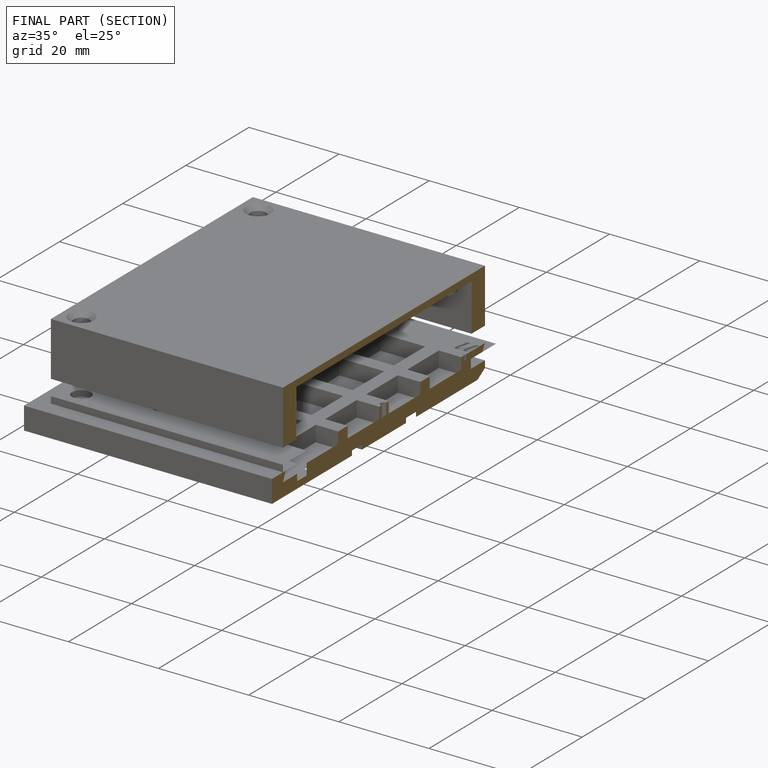
[diagram: finished part — half-section view (interior)]
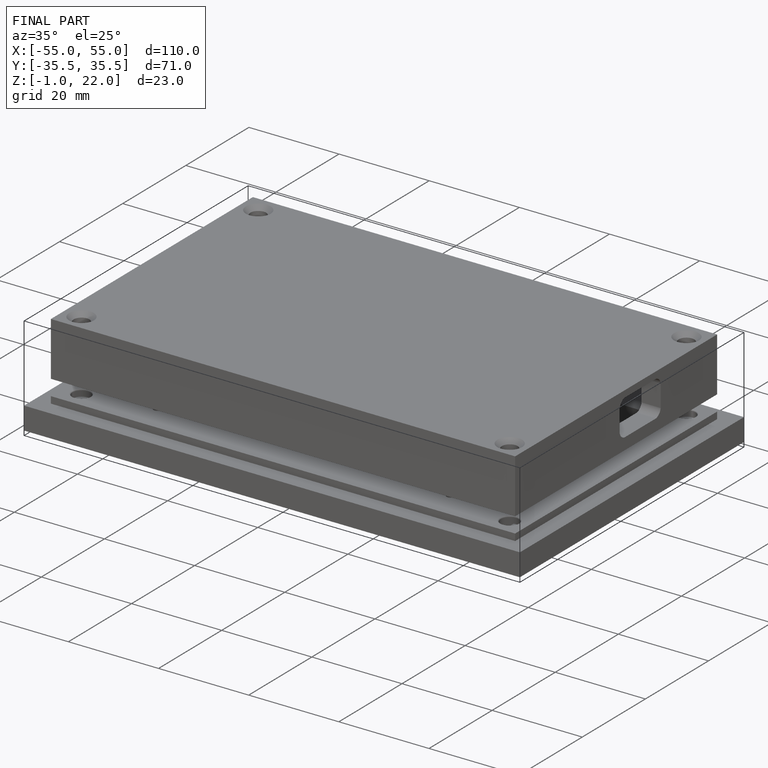
[diagram: finished part — iso view with bounding-box wireframe]
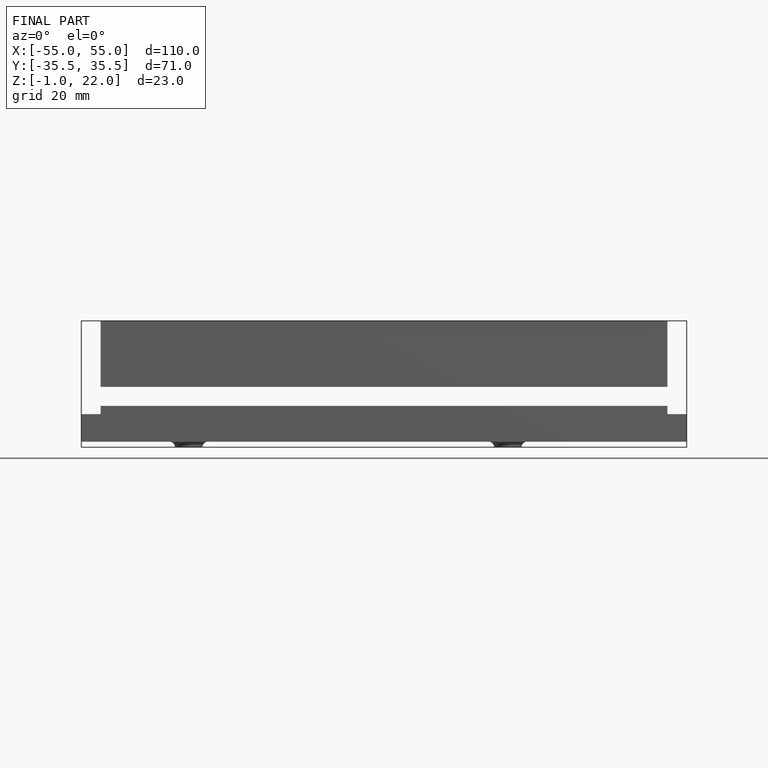
[diagram: finished part — front view with bounding-box wireframe]
